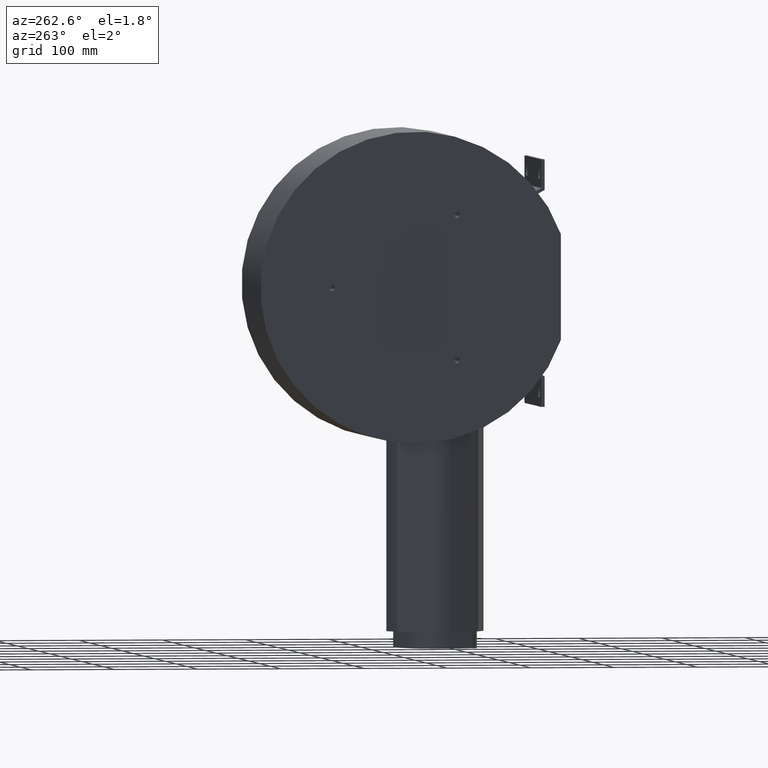
[diagram: clean part render]
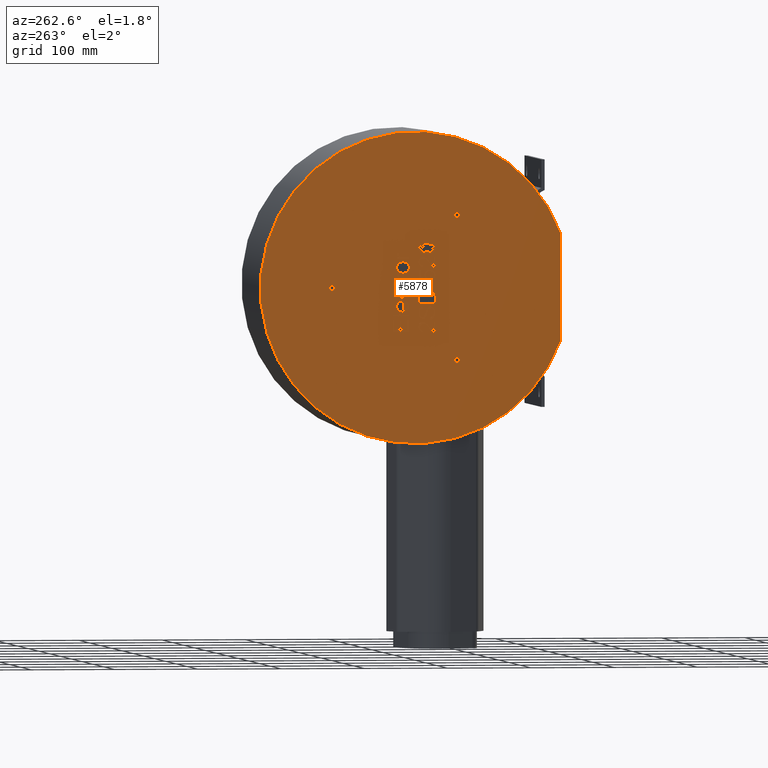
[diagram: same view with one face highlighted and labeled with its STEP entity id]
A machine part, auxiliary view. The second image highlights one B-rep face of the part: STEP entity #5878.
In plain terms, the highlighted planar face has unit normal (-1, 0, 0).
Its self-contained STEP definition (entity closure, byte-faithful):
#1494=CARTESIAN_POINT('',(0.0,-175.0,-63.015871016752627));
#1495=VERTEX_POINT('',#1494);
#1502=CARTESIAN_POINT('',(0.0,-175.0,63.015871016752627));
#1503=VERTEX_POINT('',#1502);
#1504=CARTESIAN_POINT('',(0.0,0.0,0.0));
#1505=DIRECTION('',(1.0,0.0,0.0));
#1506=DIRECTION('',(0.0,1.0,0.0));
#1507=AXIS2_PLACEMENT_3D('',#1504,#1505,#1506);
#1508=CIRCLE('',#1507,186.0);
#1509=EDGE_CURVE('',#1495,#1503,#1508,.T.);
#2282=CARTESIAN_POINT('',(0.0,-175.0,-63.015871016752627));
#2283=DIRECTION('',(0.0,0.0,1.0));
#2284=VECTOR('',#2283,126.03174203350525);
#2285=LINE('',#2282,#2284);
#2286=EDGE_CURVE('',#1495,#1503,#2285,.T.);
#3575=CARTESIAN_POINT('',(0.0,100.0,3.3235));
#3576=VERTEX_POINT('',#3575);
#3577=CARTESIAN_POINT('',(0.0,100.0,0.0));
#3578=DIRECTION('',(1.0,0.0,0.0));
#3579=DIRECTION('',(0.0,0.0,1.0));
#3580=AXIS2_PLACEMENT_3D('',#3577,#3578,#3579);
#3581=CIRCLE('',#3580,3.3235);
#3582=EDGE_CURVE('',#3576,#3576,#3581,.T.);
#3612=CARTESIAN_POINT('',(0.0,-52.878235429477563,84.940790378443893));
#3613=VERTEX_POINT('',#3612);
#3614=CARTESIAN_POINT('',(0.0,-49.999999999999986,86.602540378443891));
#3615=DIRECTION('',(1.0,0.0,0.0));
#3616=DIRECTION('',(0.0,-0.866025403784439,-0.5));
#3617=AXIS2_PLACEMENT_3D('',#3614,#3615,#3616);
#3618=CIRCLE('',#3617,3.3235);
#3619=EDGE_CURVE('',#3613,#3613,#3618,.T.);
#3649=CARTESIAN_POINT('',(0.0,-47.12176457052248,-88.264290378443846));
#3650=VERTEX_POINT('',#3649);
#3651=CARTESIAN_POINT('',(0.0,-50.000000000000057,-86.602540378443848));
#3652=DIRECTION('',(1.0,0.0,0.0));
#3653=DIRECTION('',(0.0,0.866025403784438,-0.5));
#3654=AXIS2_PLACEMENT_3D('',#3651,#3652,#3653);
#3655=CIRCLE('',#3654,3.323500000000001);
#3656=EDGE_CURVE('',#3650,#3650,#3655,.T.);
#4559=CARTESIAN_POINT('',(0.0,93.0,0.0));
#4560=DIRECTION('',(-1.0,0.0,0.0));
#4561=DIRECTION('',(0.0,0.0,1.0));
#4562=AXIS2_PLACEMENT_3D('',#4559,#4560,#4561);
#4563=PLANE('',#4562);
#4564=ORIENTED_EDGE('',*,*,#2286,.T.);
#4565=ORIENTED_EDGE('',*,*,#1509,.F.);
#4566=EDGE_LOOP('',(#4564,#4565));
#4567=FACE_OUTER_BOUND('',#4566,.T.);
#4568=CARTESIAN_POINT('',(0.0,-3.974047899246216,-18.673780487804876));
#4569=VERTEX_POINT('',#4568);
#4570=CARTESIAN_POINT('',(0.0,-3.974047899246216,-11.78353658536585));
#4571=VERTEX_POINT('',#4570);
#4572=CARTESIAN_POINT('',(0.0,-3.974047899246216,-18.673780487804876));
#4573=DIRECTION('',(0.0,0.0,1.0));
#4574=VECTOR('',#4573,6.890243902439027);
#4575=LINE('',#4572,#4574);
#4576=EDGE_CURVE('',#4569,#4571,#4575,.T.);
#4577=ORIENTED_EDGE('',*,*,#4576,.T.);
#4578=CARTESIAN_POINT('',(0.0,-4.263682045587678,-8.216463414634143));
#4579=VERTEX_POINT('',#4578);
#4580=CARTESIAN_POINT('',(0.0,-3.974047899246216,-11.78353658536585));
#4581=CARTESIAN_POINT('',(0.0,-3.974047899246216,-9.45121951219512));
#4582=CARTESIAN_POINT('',(0.0,-4.263682045587678,-8.216463414634143));
#4583=QUASI_UNIFORM_CURVE('',2,(#4580,#4581,#4582),.UNSPECIFIED.,.F.,.U.);
#4584=EDGE_CURVE('',#4571,#4579,#4583,.T.);
#4585=ORIENTED_EDGE('',*,*,#4584,.T.);
#4586=CARTESIAN_POINT('',(0.0,-5.69660887485597,-5.289634146341459));
#4587=VERTEX_POINT('',#4586);
#4588=CARTESIAN_POINT('',(0.0,-4.263682045587678,-8.216463414634143));
#4589=CARTESIAN_POINT('',(0.0,-4.660023509002313,-6.493902439024389));
#4590=CARTESIAN_POINT('',(0.0,-5.69660887485597,-5.289634146341459));
#4591=QUASI_UNIFORM_CURVE('',2,(#4588,#4589,#4590),.UNSPECIFIED.,.F.,.U.);
#4592=EDGE_CURVE('',#4579,#4587,#4591,.T.);
#4593=ORIENTED_EDGE('',*,*,#4592,.T.);
#4594=CARTESIAN_POINT('',(0.0,-13.867340582173044,-2.134146341463412));
#4595=VERTEX_POINT('',#4594);
#4596=CARTESIAN_POINT('',(0.0,-5.69660887485597,-5.289634146341459));
#4597=CARTESIAN_POINT('',(0.0,-7.022828387051094,-3.704268292682924));
#4598=CARTESIAN_POINT('',(0.0,-11.184413752904751,-2.134146341463412));
#4599=CARTESIAN_POINT('',(0.0,-13.867340582173044,-2.134146341463412));
#4600=QUASI_UNIFORM_CURVE('',2,(#4596,#4597,#4598,#4599),.UNSPECIFIED.,.F.,.U.);
#4601=EDGE_CURVE('',#4587,#4595,#4600,.T.);
#4602=ORIENTED_EDGE('',*,*,#4601,.T.);
#4603=CARTESIAN_POINT('',(0.0,-23.974047899246216,-11.448170731707314));
#4604=VERTEX_POINT('',#4603);
#4605=CARTESIAN_POINT('',(0.0,-13.867340582173044,-2.134146341463412));
#4606=CARTESIAN_POINT('',(0.0,-16.138682045587679,-2.134146341463412));
#4607=CARTESIAN_POINT('',(0.0,-19.660023509002315,-3.201219512195119));
#4608=CARTESIAN_POINT('',(0.0,-21.961852777294997,-4.862804878048777));
#4609=CARTESIAN_POINT('',(0.0,-23.28807228949012,-6.844512195121948));
#4610=CARTESIAN_POINT('',(0.0,-23.974047899246216,-9.634146341463412));
#4611=CARTESIAN_POINT('',(0.0,-23.974047899246216,-11.448170731707314));
#4612=QUASI_UNIFORM_CURVE('',2,(#4605,#4606,#4607,#4608,#4609,#4610,#4611),.UNSPECIFIED.,.F.,.U.);
#4613=EDGE_CURVE('',#4595,#4604,#4612,.T.);
#4614=ORIENTED_EDGE('',*,*,#4613,.T.);
#4615=CARTESIAN_POINT('',(0.0,-23.974047899246216,-18.673780487804876));
#4616=VERTEX_POINT('',#4615);
#4617=CARTESIAN_POINT('',(0.0,-23.974047899246216,-11.448170731707314));
#4618=DIRECTION('',(0.0,0.0,-1.0));
#4619=VECTOR('',#4618,7.225609756097562);
#4620=LINE('',#4617,#4619);
#4621=EDGE_CURVE('',#4604,#4616,#4620,.T.);
#4622=ORIENTED_EDGE('',*,*,#4621,.T.);
#4623=CARTESIAN_POINT('',(0.0,-23.974047899246216,-18.673780487804876));
#4624=DIRECTION('',(0.0,1.0,0.0));
#4625=VECTOR('',#4624,20.0);
#4626=LINE('',#4623,#4625);
#4627=EDGE_CURVE('',#4616,#4569,#4626,.T.);
#4628=ORIENTED_EDGE('',*,*,#4627,.T.);
#4629=EDGE_LOOP('',(#4577,#4585,#4593,#4602,#4614,#4622,#4628));
#4630=FACE_BOUND('',#4629,.T.);
#4631=CARTESIAN_POINT('',(0.0,-17.327706435831583,-35.716463414634141));
#4632=VERTEX_POINT('',#4631);
#4633=CARTESIAN_POINT('',(0.0,-21.946608874855972,-29.801829268292678));
#4634=VERTEX_POINT('',#4633);
#4635=CARTESIAN_POINT('',(0.0,-17.327706435831583,-35.716463414634141));
#4636=CARTESIAN_POINT('',(0.0,-18.836852777294997,-35.533536585365852));
#4637=CARTESIAN_POINT('',(0.0,-20.757584484612067,-34.237804878048777));
#4638=CARTESIAN_POINT('',(0.0,-21.946608874855972,-31.50914634146341));
#4639=CARTESIAN_POINT('',(0.0,-21.946608874855972,-29.801829268292678));
#4640=QUASI_UNIFORM_CURVE('',2,(#4635,#4636,#4637,#4638,#4639),.UNSPECIFIED.,.F.,.U.);
#4641=EDGE_CURVE('',#4632,#4634,#4640,.T.);
#4642=ORIENTED_EDGE('',*,*,#4641,.T.);
#4643=CARTESIAN_POINT('',(0.0,-18.547218630953534,-24.832317073170728));
#4644=VERTEX_POINT('',#4643);
#4645=CARTESIAN_POINT('',(0.0,-21.946608874855972,-29.801829268292678));
#4646=CARTESIAN_POINT('',(0.0,-21.946608874855972,-28.292682926829265));
#4647=CARTESIAN_POINT('',(0.0,-21.04721863095353,-25.960365853658534));
#4648=CARTESIAN_POINT('',(0.0,-19.477096679734021,-24.832317073170728));
#4649=CARTESIAN_POINT('',(0.0,-18.547218630953534,-24.832317073170728));
#4650=QUASI_UNIFORM_CURVE('',2,(#4645,#4646,#4647,#4648,#4649),.UNSPECIFIED.,.F.,.U.);
#4651=EDGE_CURVE('',#4634,#4644,#4650,.T.);
#4652=ORIENTED_EDGE('',*,*,#4651,.T.);
#4653=CARTESIAN_POINT('',(0.0,-15.727096679734021,-27.179878048780488));
#4654=VERTEX_POINT('',#4653);
#4655=CARTESIAN_POINT('',(0.0,-18.547218630953534,-24.832317073170728));
#4656=CARTESIAN_POINT('',(0.0,-17.602096679734021,-24.832317073170728));
#4657=CARTESIAN_POINT('',(0.0,-16.199657655343778,-25.914634146341456));
#4658=CARTESIAN_POINT('',(0.0,-15.727096679734021,-27.179878048780488));
#4659=QUASI_UNIFORM_CURVE('',2,(#4655,#4656,#4657,#4658),.UNSPECIFIED.,.F.,.U.);
#4660=EDGE_CURVE('',#4644,#4654,#4659,.T.);
#4661=ORIENTED_EDGE('',*,*,#4660,.T.);
#4662=CARTESIAN_POINT('',(0.0,-13.486243021197435,-34.634146341463413));
#4663=VERTEX_POINT('',#4662);
#4664=CARTESIAN_POINT('',(0.0,-15.727096679734021,-27.179878048780488));
#4665=CARTESIAN_POINT('',(0.0,-15.406974728514509,-27.987804878048777));
#4666=CARTESIAN_POINT('',(0.0,-14.080755216319387,-33.521341463414629));
#4667=CARTESIAN_POINT('',(0.0,-13.486243021197435,-34.634146341463406));
#4668=QUASI_UNIFORM_CURVE('',2,(#4664,#4665,#4666,#4667),.UNSPECIFIED.,.F.,.U.);
#4669=EDGE_CURVE('',#4654,#4663,#4668,.T.);
#4670=ORIENTED_EDGE('',*,*,#4669,.T.);
#4671=CARTESIAN_POINT('',(0.0,-9.141730826075484,-37.469512195121951));
#4672=VERTEX_POINT('',#4671);
#4673=CARTESIAN_POINT('',(0.0,-13.486243021197435,-34.634146341463406));
#4674=CARTESIAN_POINT('',(0.0,-12.739291801685241,-36.067073170731703));
#4675=CARTESIAN_POINT('',(0.0,-10.513682045587679,-37.469512195121951));
#4676=CARTESIAN_POINT('',(0.0,-9.141730826075483,-37.469512195121951));
#4677=QUASI_UNIFORM_CURVE('',2,(#4673,#4674,#4675,#4676),.UNSPECIFIED.,.F.,.U.);
#4678=EDGE_CURVE('',#4663,#4672,#4677,.T.);
#4679=ORIENTED_EDGE('',*,*,#4678,.T.);
#4680=CARTESIAN_POINT('',(0.0,-3.623438143148654,-30.411585365853657));
#4681=VERTEX_POINT('',#4680);
#4682=CARTESIAN_POINT('',(0.0,-9.141730826075483,-37.469512195121951));
#4683=CARTESIAN_POINT('',(0.0,-7.617340582173044,-37.469512195121951));
#4684=CARTESIAN_POINT('',(0.0,-4.995389362660849,-35.746951219512191));
#4685=CARTESIAN_POINT('',(0.0,-3.623438143148654,-32.439024390243901));
#4686=CARTESIAN_POINT('',(0.0,-3.623438143148654,-30.411585365853657));
#4687=QUASI_UNIFORM_CURVE('',2,(#4682,#4683,#4684,#4685,#4686),.UNSPECIFIED.,.F.,.U.);
#4688=EDGE_CURVE('',#4672,#4681,#4687,.T.);
#4689=ORIENTED_EDGE('',*,*,#4688,.T.);
#4690=CARTESIAN_POINT('',(0.0,-9.599047899246216,-22.881097560975604));
#4691=VERTEX_POINT('',#4690);
#4692=CARTESIAN_POINT('',(0.0,-3.623438143148654,-30.411585365853657));
#4693=CARTESIAN_POINT('',(0.0,-3.623438143148654,-28.185975609756095));
#4694=CARTESIAN_POINT('',(0.0,-5.056364972416947,-24.786585365853657));
#4695=CARTESIAN_POINT('',(0.0,-7.845999118758411,-22.942073170731703));
#4696=CARTESIAN_POINT('',(0.0,-9.599047899246216,-22.881097560975604));
#4697=QUASI_UNIFORM_CURVE('',2,(#4692,#4693,#4694,#4695,#4696),.UNSPECIFIED.,.F.,.U.);
#4698=EDGE_CURVE('',#4681,#4691,#4697,.T.);
#4699=ORIENTED_EDGE('',*,*,#4698,.T.);
#4700=CARTESIAN_POINT('',(0.0,-9.797218630953532,-25.411585365853657));
#4701=VERTEX_POINT('',#4700);
#4702=CARTESIAN_POINT('',(0.0,-9.599047899246221,-22.881097560975604));
#4703=DIRECTION('',(0.0,-0.078074205759966,-0.996947550473419));
#4704=VECTOR('',#4703,2.538235641058958);
#4705=LINE('',#4702,#4704);
#4706=EDGE_CURVE('',#4691,#4701,#4705,.T.);
#4707=ORIENTED_EDGE('',*,*,#4706,.T.);
#4708=CARTESIAN_POINT('',(0.0,-5.955755216319385,-30.304878048780488));
#4709=VERTEX_POINT('',#4708);
#4710=CARTESIAN_POINT('',(0.0,-9.797218630953532,-25.411585365853657));
#4711=CARTESIAN_POINT('',(0.0,-7.891730826075483,-25.609756097560972));
#4712=CARTESIAN_POINT('',(0.0,-5.955755216319385,-27.987804878048777));
#4713=CARTESIAN_POINT('',(0.0,-5.955755216319385,-30.304878048780488));
#4714=QUASI_UNIFORM_CURVE('',2,(#4710,#4711,#4712,#4713),.UNSPECIFIED.,.F.,.U.);
#4715=EDGE_CURVE('',#4701,#4709,#4714,.T.);
#4716=ORIENTED_EDGE('',*,*,#4715,.T.);
#4717=CARTESIAN_POINT('',(0.0,-8.958803996807191,-34.923780487804876));
#4718=VERTEX_POINT('',#4717);
#4719=CARTESIAN_POINT('',(0.0,-5.955755216319385,-30.304878048780488));
#4720=CARTESIAN_POINT('',(0.0,-5.955755216319385,-32.713414634146339));
#4721=CARTESIAN_POINT('',(0.0,-7.724047899246216,-34.923780487804876));
#4722=CARTESIAN_POINT('',(0.0,-8.958803996807191,-34.923780487804876));
#4723=QUASI_UNIFORM_CURVE('',2,(#4719,#4720,#4721,#4722),.UNSPECIFIED.,.F.,.U.);
#4724=EDGE_CURVE('',#4709,#4718,#4723,.T.);
#4725=ORIENTED_EDGE('',*,*,#4724,.T.);
#4726=CARTESIAN_POINT('',(0.0,-10.742340582173044,-34.146341463414629));
#4727=VERTEX_POINT('',#4726);
#4728=CARTESIAN_POINT('',(0.0,-8.958803996807191,-34.923780487804876));
#4729=CARTESIAN_POINT('',(0.0,-10.041121069977923,-34.923780487804876));
#4730=CARTESIAN_POINT('',(0.0,-10.742340582173044,-34.146341463414629));
#4731=QUASI_UNIFORM_CURVE('',2,(#4728,#4729,#4730),.UNSPECIFIED.,.F.,.U.);
#4732=EDGE_CURVE('',#4718,#4727,#4731,.T.);
#4733=ORIENTED_EDGE('',*,*,#4732,.T.);
#4734=CARTESIAN_POINT('',(0.0,-13.440511313880361,-25.685975609756095));
#4735=VERTEX_POINT('',#4734);
#4736=CARTESIAN_POINT('',(0.0,-10.742340582173044,-34.146341463414629));
#4737=CARTESIAN_POINT('',(0.0,-11.428316191929142,-33.368902439024389));
#4738=CARTESIAN_POINT('',(0.0,-12.891730826075484,-26.890243902439018));
#4739=CARTESIAN_POINT('',(0.0,-13.440511313880361,-25.685975609756095));
#4740=QUASI_UNIFORM_CURVE('',2,(#4736,#4737,#4738,#4739),.UNSPECIFIED.,.F.,.U.);
#4741=EDGE_CURVE('',#4727,#4735,#4740,.T.);
#4742=ORIENTED_EDGE('',*,*,#4741,.T.);
#4743=CARTESIAN_POINT('',(0.0,-18.318560094368166,-22.286585365853657));
#4744=VERTEX_POINT('',#4743);
#4745=CARTESIAN_POINT('',(0.0,-13.440511313880361,-25.685975609756095));
#4746=CARTESIAN_POINT('',(0.0,-14.248438143148654,-23.948170731707314));
#4747=CARTESIAN_POINT('',(0.0,-16.717950338270605,-22.286585365853657));
#4748=CARTESIAN_POINT('',(0.0,-18.318560094368166,-22.286585365853657));
#4749=QUASI_UNIFORM_CURVE('',2,(#4745,#4746,#4747,#4748),.UNSPECIFIED.,.F.,.U.);
#4750=EDGE_CURVE('',#4735,#4744,#4749,.T.);
#4751=ORIENTED_EDGE('',*,*,#4750,.T.);
#4752=CARTESIAN_POINT('',(0.0,-24.309413752904753,-29.679878048780491));
#4753=VERTEX_POINT('',#4752);
#4754=CARTESIAN_POINT('',(0.0,-18.318560094368166,-22.286585365853657));
#4755=CARTESIAN_POINT('',(0.0,-19.919169850465728,-22.286585365853657));
#4756=CARTESIAN_POINT('',(0.0,-22.739291801685241,-24.115853658536579));
#4757=CARTESIAN_POINT('',(0.0,-24.309413752904753,-27.545731707317067));
#4758=CARTESIAN_POINT('',(0.0,-24.309413752904753,-29.679878048780488));
#4759=QUASI_UNIFORM_CURVE('',2,(#4754,#4755,#4756,#4757,#4758),.UNSPECIFIED.,.F.,.U.);
#4760=EDGE_CURVE('',#4744,#4753,#4759,.T.);
#4761=ORIENTED_EDGE('',*,*,#4760,.T.);
#4762=CARTESIAN_POINT('',(0.0,-17.541121069977923,-38.216463414634141));
#4763=VERTEX_POINT('',#4762);
#4764=CARTESIAN_POINT('',(0.0,-24.309413752904753,-29.679878048780488));
#4765=CARTESIAN_POINT('',(0.0,-24.309413752904753,-32.408536585365852));
#4766=CARTESIAN_POINT('',(0.0,-22.724047899246216,-36.067073170731703));
#4767=CARTESIAN_POINT('',(0.0,-19.553316191929142,-38.155487804878049));
#4768=CARTESIAN_POINT('',(0.0,-17.541121069977923,-38.216463414634141));
#4769=QUASI_UNIFORM_CURVE('',2,(#4764,#4765,#4766,#4767,#4768),.UNSPECIFIED.,.F.,.U.);
#4770=EDGE_CURVE('',#4753,#4763,#4769,.T.);
#4771=ORIENTED_EDGE('',*,*,#4770,.T.);
#4772=CARTESIAN_POINT('',(0.0,-17.541121069977923,-38.216463414634148));
#4773=DIRECTION('',(0.0,0.085056498883755,0.996376129781137));
#4774=VECTOR('',#4773,2.509092626043888);
#4775=LINE('',#4772,#4774);
#4776=EDGE_CURVE('',#4763,#4632,#4775,.T.);
#4777=ORIENTED_EDGE('',*,*,#4776,.T.);
#4778=EDGE_LOOP('',(#4642,#4652,#4661,#4670,#4679,#4689,#4699,#4707,#4716,#4725,#4733,#4742,#4751,#4761,#4771,#4777));
#4779=FACE_BOUND('',#4778,.T.);
#4780=CARTESIAN_POINT('',(0.0,-23.974047899246216,-40.945121951219512));
#4781=VERTEX_POINT('',#4780);
#4782=CARTESIAN_POINT('',(0.0,-23.974047899246216,-54.161585365853654));
#4783=VERTEX_POINT('',#4782);
#4784=CARTESIAN_POINT('',(0.0,-23.974047899246216,-40.945121951219512));
#4785=DIRECTION('',(0.0,0.0,-1.0));
#4786=VECTOR('',#4785,13.216463414634141);
#4787=LINE('',#4784,#4786);
#4788=EDGE_CURVE('',#4781,#4783,#4787,.T.);
#4789=ORIENTED_EDGE('',*,*,#4788,.T.);
#4790=CARTESIAN_POINT('',(0.0,-22.266730826075488,-53.871951219512191));
#4791=VERTEX_POINT('',#4790);
#4792=CARTESIAN_POINT('',(0.0,-23.974047899246216,-54.161585365853654));
#4793=CARTESIAN_POINT('',(0.0,-23.089901557782802,-54.192073170731703));
#4794=CARTESIAN_POINT('',(0.0,-22.266730826075481,-53.871951219512191));
#4795=QUASI_UNIFORM_CURVE('',2,(#4792,#4793,#4794),.UNSPECIFIED.,.F.,.U.);
#4796=EDGE_CURVE('',#4783,#4791,#4795,.T.);
#4797=ORIENTED_EDGE('',*,*,#4796,.T.);
#4798=CARTESIAN_POINT('',(0.0,-16.580755216319389,-49.03963414634147));
#4799=VERTEX_POINT('',#4798);
#4800=CARTESIAN_POINT('',(0.0,-22.266730826075481,-53.871951219512191));
#4801=CARTESIAN_POINT('',(0.0,-20.910023509002311,-53.368902439024389));
#4802=CARTESIAN_POINT('',(0.0,-18.303316191929142,-51.143292682926827));
#4803=CARTESIAN_POINT('',(0.0,-16.580755216319389,-49.03963414634147));
#4804=QUASI_UNIFORM_CURVE('',2,(#4800,#4801,#4802,#4803),.UNSPECIFIED.,.F.,.U.);
#4805=EDGE_CURVE('',#4791,#4799,#4804,.T.);
#4806=ORIENTED_EDGE('',*,*,#4805,.T.);
#4807=CARTESIAN_POINT('',(0.0,-9.385633265099873,-43.506097560975611));
#4808=VERTEX_POINT('',#4807);
#4809=CARTESIAN_POINT('',(0.0,-16.580755216319389,-49.03963414634147));
#4810=CARTESIAN_POINT('',(0.0,-13.897828387051094,-45.792682926829265));
#4811=CARTESIAN_POINT('',(0.0,-10.788072289490119,-43.506097560975611));
#4812=CARTESIAN_POINT('',(0.0,-9.385633265099873,-43.506097560975611));
#4813=QUASI_UNIFORM_CURVE('',2,(#4809,#4810,#4811,#4812),.UNSPECIFIED.,.F.,.U.);
#4814=EDGE_CURVE('',#4799,#4808,#4813,.T.);
#4815=ORIENTED_EDGE('',*,*,#4814,.T.);
#4816=CARTESIAN_POINT('',(0.0,-5.925267411441338,-47.271341463414629));
#4817=VERTEX_POINT('',#4816);
#4818=CARTESIAN_POINT('',(0.0,-9.385633265099873,-43.506097560975611));
#4819=CARTESIAN_POINT('',(0.0,-7.922218630953532,-43.506097560975611));
#4820=CARTESIAN_POINT('',(0.0,-5.925267411441338,-45.594512195121951));
#4821=CARTESIAN_POINT('',(0.0,-5.925267411441338,-47.271341463414629));
#4822=QUASI_UNIFORM_CURVE('',2,(#4818,#4819,#4820,#4821),.UNSPECIFIED.,.F.,.U.);
#4823=EDGE_CURVE('',#4808,#4817,#4822,.T.);
#4824=ORIENTED_EDGE('',*,*,#4823,.T.);
#4825=CARTESIAN_POINT('',(0.0,-9.934413752904753,-51.173780487804876));
#4826=VERTEX_POINT('',#4825);
#4827=CARTESIAN_POINT('',(0.0,-5.925267411441338,-47.271341463414629));
#4828=CARTESIAN_POINT('',(0.0,-5.925267411441338,-49.03963414634147));
#4829=CARTESIAN_POINT('',(0.0,-8.059413752904751,-51.158536585365859));
#4830=CARTESIAN_POINT('',(0.0,-9.934413752904751,-51.173780487804876));
#4831=QUASI_UNIFORM_CURVE('',2,(#4827,#4828,#4829,#4830),.UNSPECIFIED.,.F.,.U.);
#4832=EDGE_CURVE('',#4817,#4826,#4831,.T.);
#4833=ORIENTED_EDGE('',*,*,#4832,.T.);
#4834=CARTESIAN_POINT('',(0.0,-9.675267411441338,-53.704268292682926));
#4835=VERTEX_POINT('',#4834);
#4836=CARTESIAN_POINT('',(0.0,-9.934413752904757,-51.173780487804883));
#4837=DIRECTION('',(0.0,0.101876803556507,-0.994797022963533));
#4838=VECTOR('',#4837,2.543722735859859);
#4839=LINE('',#4836,#4838);
#4840=EDGE_CURVE('',#4826,#4835,#4839,.T.);
#4841=ORIENTED_EDGE('',*,*,#4840,.T.);
#4842=CARTESIAN_POINT('',(0.0,-3.897828387051092,-47.21036585365853));
#4843=VERTEX_POINT('',#4842);
#4844=CARTESIAN_POINT('',(0.0,-9.675267411441338,-53.704268292682926));
#4845=CARTESIAN_POINT('',(0.0,-6.855145460221825,-53.445121951219512));
#4846=CARTESIAN_POINT('',(0.0,-3.897828387051092,-50.060975609756099));
#4847=CARTESIAN_POINT('',(0.0,-3.897828387051092,-47.21036585365853));
#4848=QUASI_UNIFORM_CURVE('',2,(#4844,#4845,#4846,#4847),.UNSPECIFIED.,.F.,.U.);
#4849=EDGE_CURVE('',#4835,#4843,#4848,.T.);
#4850=ORIENTED_EDGE('',*,*,#4849,.T.);
#4851=CARTESIAN_POINT('',(0.0,-9.44660887485597,-40.975609756097562));
#4852=VERTEX_POINT('',#4851);
#4853=CARTESIAN_POINT('',(0.0,-3.897828387051092,-47.21036585365853));
#4854=CARTESIAN_POINT('',(0.0,-3.897828387051092,-44.329268292682926));
#4855=CARTESIAN_POINT('',(0.0,-7.083803996807189,-40.975609756097562));
#4856=CARTESIAN_POINT('',(0.0,-9.44660887485597,-40.975609756097562));
#4857=QUASI_UNIFORM_CURVE('',2,(#4853,#4854,#4855,#4856),.UNSPECIFIED.,.F.,.U.);
#4858=EDGE_CURVE('',#4843,#4852,#4857,.T.);
#4859=ORIENTED_EDGE('',*,*,#4858,.T.);
#4860=CARTESIAN_POINT('',(0.0,-17.769779606563286,-46.875));
#4861=VERTEX_POINT('',#4860);
#4862=CARTESIAN_POINT('',(0.0,-9.44660887485597,-40.975609756097562));
#4863=CARTESIAN_POINT('',(0.0,-10.6508771675389,-40.975609756097562));
#4864=CARTESIAN_POINT('',(0.0,-12.967950338270606,-41.951219512195124));
#4865=CARTESIAN_POINT('',(0.0,-15.528925948026702,-44.237804878048777));
#4866=CARTESIAN_POINT('',(0.0,-17.769779606563286,-46.875));
#4867=QUASI_UNIFORM_CURVE('',2,(#4862,#4863,#4864,#4865,#4866),.UNSPECIFIED.,.F.,.U.);
#4868=EDGE_CURVE('',#4852,#4861,#4867,.T.);
#4869=ORIENTED_EDGE('',*,*,#4868,.T.);
#4870=CARTESIAN_POINT('',(0.0,-21.611243021197435,-50.746951219512198));
#4871=VERTEX_POINT('',#4870);
#4872=CARTESIAN_POINT('',(0.0,-17.769779606563286,-46.875));
#4873=CARTESIAN_POINT('',(0.0,-19.614291801685241,-49.08536585365853));
#4874=CARTESIAN_POINT('',(0.0,-20.940511313880364,-50.33536585365853));
#4875=CARTESIAN_POINT('',(0.0,-21.611243021197435,-50.746951219512191));
#4876=QUASI_UNIFORM_CURVE('',2,(#4872,#4873,#4874,#4875),.UNSPECIFIED.,.F.,.U.);
#4877=EDGE_CURVE('',#4861,#4871,#4876,.T.);
#4878=ORIENTED_EDGE('',*,*,#4877,.T.);
#4879=CARTESIAN_POINT('',(0.0,-21.611243021197435,-40.945121951219512));
#4880=VERTEX_POINT('',#4879);
#4881=CARTESIAN_POINT('',(0.0,-21.611243021197435,-50.746951219512198));
#4882=DIRECTION('',(0.0,0.0,1.0));
#4883=VECTOR('',#4882,9.801829268292686);
#4884=LINE('',#4881,#4883);
#4885=EDGE_CURVE('',#4871,#4880,#4884,.T.);
#4886=ORIENTED_EDGE('',*,*,#4885,.T.);
#4887=CARTESIAN_POINT('',(0.0,-21.611243021197431,-40.945121951219512));
#4888=DIRECTION('',(0.0,-1.0,0.0));
#4889=VECTOR('',#4888,2.362804878048785);
#4890=LINE('',#4887,#4889);
#4891=EDGE_CURVE('',#4880,#4781,#4890,.T.);
#4892=ORIENTED_EDGE('',*,*,#4891,.T.);
#4893=EDGE_LOOP('',(#4789,#4797,#4806,#4815,#4824,#4833,#4841,#4850,#4859,#4869,#4878,#4886,#4892));
#4894=FACE_BOUND('',#4893,.T.);
#4895=CARTESIAN_POINT('',(0.0,21.99695241160509,33.765243902439025));
#4896=VERTEX_POINT('',#4895);
#4897=CARTESIAN_POINT('',(0.0,21.99695241160509,35.975609756097562));
#4898=VERTEX_POINT('',#4897);
#4899=CARTESIAN_POINT('',(0.0,21.996952411605086,33.765243902439025));
#4900=DIRECTION('',(0.0,0.0,1.0));
#4901=VECTOR('',#4900,2.210365853658537);
#4902=LINE('',#4899,#4901);
#4903=EDGE_CURVE('',#4896,#4898,#4902,.T.);
#4904=ORIENTED_EDGE('',*,*,#4903,.T.);
#4905=CARTESIAN_POINT('',(0.0,19.801830460385577,35.975609756097562));
#4906=VERTEX_POINT('',#4905);
#4907=CARTESIAN_POINT('',(0.0,21.996952411605093,35.975609756097562));
#4908=DIRECTION('',(0.0,-1.0,0.0));
#4909=VECTOR('',#4908,2.195121951219512);
#4910=LINE('',#4907,#4909);
#4911=EDGE_CURVE('',#4898,#4906,#4910,.T.);
#4912=ORIENTED_EDGE('',*,*,#4911,.T.);
#4913=CARTESIAN_POINT('',(0.0,22.317074362824599,39.115853658536587));
#4914=VERTEX_POINT('',#4913);
#4915=CARTESIAN_POINT('',(0.0,19.801830460385577,35.975609756097562));
#4916=CARTESIAN_POINT('',(0.0,21.341464606727044,36.814024390243901));
#4917=CARTESIAN_POINT('',(0.0,22.317074362824599,38.246951219512198));
#4918=CARTESIAN_POINT('',(0.0,22.317074362824599,39.115853658536587));
#4919=QUASI_UNIFORM_CURVE('',2,(#4915,#4916,#4917,#4918),.UNSPECIFIED.,.F.,.U.);
#4920=EDGE_CURVE('',#4906,#4914,#4919,.T.);
#4921=ORIENTED_EDGE('',*,*,#4920,.T.);
#4922=CARTESIAN_POINT('',(0.0,21.539635338434362,41.631097560975611));
#4923=VERTEX_POINT('',#4922);
#4924=CARTESIAN_POINT('',(0.0,22.317074362824599,39.115853658536587));
#4925=CARTESIAN_POINT('',(0.0,22.317074362824599,40.350609756097562));
#4926=CARTESIAN_POINT('',(0.0,21.539635338434362,41.631097560975611));
#4927=QUASI_UNIFORM_CURVE('',2,(#4924,#4925,#4926),.UNSPECIFIED.,.F.,.U.);
#4928=EDGE_CURVE('',#4914,#4923,#4927,.T.);
#4929=ORIENTED_EDGE('',*,*,#4928,.T.);
#4930=CARTESIAN_POINT('',(0.0,19.253049972580701,40.777439024390247));
#4931=VERTEX_POINT('',#4930);
#4932=CARTESIAN_POINT('',(0.0,21.539635338434362,41.631097560975604));
#4933=DIRECTION('',(0.0,-0.936841514727358,-0.34975416549821));
#4934=VECTOR('',#4933,2.440738726783589);
#4935=LINE('',#4932,#4934);
#4936=EDGE_CURVE('',#4923,#4931,#4935,.T.);
#4937=ORIENTED_EDGE('',*,*,#4936,.T.);
#4938=CARTESIAN_POINT('',(0.0,19.786586557946556,38.978658536585364));
#4939=VERTEX_POINT('',#4938);
#4940=CARTESIAN_POINT('',(0.0,19.253049972580701,40.777439024390247));
#4941=CARTESIAN_POINT('',(0.0,19.786586557946556,39.878048780487809));
#4942=CARTESIAN_POINT('',(0.0,19.786586557946556,38.978658536585364));
#4943=QUASI_UNIFORM_CURVE('',2,(#4940,#4941,#4942),.UNSPECIFIED.,.F.,.U.);
#4944=EDGE_CURVE('',#4931,#4939,#4943,.T.);
#4945=ORIENTED_EDGE('',*,*,#4944,.T.);
#4946=CARTESIAN_POINT('',(0.0,17.957318265263631,36.631097560975611));
#4947=VERTEX_POINT('',#4946);
#4948=CARTESIAN_POINT('',(0.0,19.786586557946556,38.978658536585364));
#4949=CARTESIAN_POINT('',(0.0,19.786586557946556,38.170731707317074));
#4950=CARTESIAN_POINT('',(0.0,18.810976801848994,36.905487804878049));
#4951=CARTESIAN_POINT('',(0.0,17.957318265263627,36.631097560975611));
#4952=QUASI_UNIFORM_CURVE('',2,(#4948,#4949,#4950,#4951),.UNSPECIFIED.,.F.,.U.);
#4953=EDGE_CURVE('',#4939,#4947,#4952,.T.);
#4954=ORIENTED_EDGE('',*,*,#4953,.T.);
#4955=CARTESIAN_POINT('',(0.0,15.091464606727044,36.219512195121951));
#4956=VERTEX_POINT('',#4955);
#4957=CARTESIAN_POINT('',(0.0,17.957318265263627,36.631097560975611));
#4958=CARTESIAN_POINT('',(0.0,16.646342655507528,36.219512195121951));
#4959=CARTESIAN_POINT('',(0.0,15.091464606727044,36.219512195121951));
#4960=QUASI_UNIFORM_CURVE('',2,(#4957,#4958,#4959),.UNSPECIFIED.,.F.,.U.);
#4961=EDGE_CURVE('',#4947,#4956,#4960,.T.);
#4962=ORIENTED_EDGE('',*,*,#4961,.T.);
#4963=CARTESIAN_POINT('',(0.0,7.500001192092896,36.219512195121951));
#4964=VERTEX_POINT('',#4963);
#4965=CARTESIAN_POINT('',(0.0,15.091464606727044,36.219512195121951));
#4966=DIRECTION('',(0.0,-1.0,0.0));
#4967=VECTOR('',#4966,7.591463414634148);
#4968=LINE('',#4965,#4967);
#4969=EDGE_CURVE('',#4956,#4964,#4968,.T.);
#4970=ORIENTED_EDGE('',*,*,#4969,.T.);
#4971=CARTESIAN_POINT('',(0.0,7.500001192092896,33.765243902439025));
#4972=VERTEX_POINT('',#4971);
#4973=CARTESIAN_POINT('',(0.0,7.500001192092896,36.219512195121951));
#4974=DIRECTION('',(0.0,0.0,-1.0));
#4975=VECTOR('',#4974,2.454268292682926);
#4976=LINE('',#4973,#4975);
#4977=EDGE_CURVE('',#4964,#4972,#4976,.T.);
#4978=ORIENTED_EDGE('',*,*,#4977,.T.);
#4979=CARTESIAN_POINT('',(0.0,7.500001192092896,33.765243902439025));
#4980=DIRECTION('',(0.0,1.0,0.0));
#4981=VECTOR('',#4980,14.496951219512191);
#4982=LINE('',#4979,#4981);
#4983=EDGE_CURVE('',#4972,#4896,#4982,.T.);
#4984=ORIENTED_EDGE('',*,*,#4983,.T.);
#4985=EDGE_LOOP('',(#4904,#4912,#4921,#4929,#4937,#4945,#4954,#4962,#4970,#4978,#4984));
#4986=FACE_BOUND('',#4985,.T.);
#4987=CARTESIAN_POINT('',(0.0,11.859757289653871,-15.853658536585364));
#4988=VERTEX_POINT('',#4987);
#4989=CARTESIAN_POINT('',(0.0,7.179879240873383,-22.225609756097562));
#4990=VERTEX_POINT('',#4989);
#4991=CARTESIAN_POINT('',(0.0,11.859757289653871,-15.853658536585364));
#4992=CARTESIAN_POINT('',(0.0,9.634147533556309,-16.463414634146339));
#4993=CARTESIAN_POINT('',(0.0,7.179879240873383,-19.710365853658537));
#4994=CARTESIAN_POINT('',(0.0,7.179879240873383,-22.225609756097562));
#4995=QUASI_UNIFORM_CURVE('',2,(#4991,#4992,#4993,#4994),.UNSPECIFIED.,.F.,.U.);
#4996=EDGE_CURVE('',#4988,#4990,#4995,.T.);
#4997=ORIENTED_EDGE('',*,*,#4996,.T.);
#4998=CARTESIAN_POINT('',(0.0,14.618903631117286,-29.131097560975611));
#4999=VERTEX_POINT('',#4998);
#5000=CARTESIAN_POINT('',(0.0,7.179879240873383,-22.225609756097562));
#5001=CARTESIAN_POINT('',(0.0,7.179879240873383,-25.411585365853657));
#5002=CARTESIAN_POINT('',(0.0,11.097562167702652,-29.131097560975611));
#5003=CARTESIAN_POINT('',(0.0,14.618903631117286,-29.131097560975611));
#5004=QUASI_UNIFORM_CURVE('',2,(#5000,#5001,#5002,#5003),.UNSPECIFIED.,.F.,.U.);
#5005=EDGE_CURVE('',#4990,#4999,#5004,.T.);
#5006=ORIENTED_EDGE('',*,*,#5005,.T.);
#5007=CARTESIAN_POINT('',(0.0,22.317074362824599,-22.362804878048784));
#5008=VERTEX_POINT('',#5007);
#5009=CARTESIAN_POINT('',(0.0,14.618903631117286,-29.131097560975611));
#5010=CARTESIAN_POINT('',(0.0,18.277440216483139,-29.131097560975611));
#5011=CARTESIAN_POINT('',(0.0,22.317074362824599,-25.365853658536587));
#5012=CARTESIAN_POINT('',(0.0,22.317074362824599,-22.362804878048781));
#5013=QUASI_UNIFORM_CURVE('',2,(#5009,#5010,#5011,#5012),.UNSPECIFIED.,.F.,.U.);
#5014=EDGE_CURVE('',#4999,#5008,#5013,.T.);
#5015=ORIENTED_EDGE('',*,*,#5014,.T.);
#5016=CARTESIAN_POINT('',(0.0,14.771342655507528,-15.777439024390244));
#5017=VERTEX_POINT('',#5016);
#5018=CARTESIAN_POINT('',(0.0,22.317074362824599,-22.362804878048781));
#5019=CARTESIAN_POINT('',(0.0,22.317074362824599,-19.466463414634145));
#5020=CARTESIAN_POINT('',(0.0,18.353659728678263,-15.777439024390244));
#5021=CARTESIAN_POINT('',(0.0,14.771342655507528,-15.777439024390244));
#5022=QUASI_UNIFORM_CURVE('',2,(#5018,#5019,#5020,#5021),.UNSPECIFIED.,.F.,.U.);
#5023=EDGE_CURVE('',#5008,#5017,#5022,.T.);
#5024=ORIENTED_EDGE('',*,*,#5023,.T.);
#5025=CARTESIAN_POINT('',(0.0,14.115854850629482,-15.792682926829267));
#5026=VERTEX_POINT('',#5025);
#5027=CARTESIAN_POINT('',(0.0,14.771342655507528,-15.777439024390244));
#5028=CARTESIAN_POINT('',(0.0,14.557928021361189,-15.777439024390244));
#5029=CARTESIAN_POINT('',(0.0,14.115854850629482,-15.792682926829267));
#5030=QUASI_UNIFORM_CURVE('',2,(#5027,#5028,#5029),.UNSPECIFIED.,.F.,.U.);
#5031=EDGE_CURVE('',#5017,#5026,#5030,.T.);
#5032=ORIENTED_EDGE('',*,*,#5031,.T.);
#5033=CARTESIAN_POINT('',(0.0,14.115854850629482,-26.600609756097562));
#5034=VERTEX_POINT('',#5033);
#5035=CARTESIAN_POINT('',(0.0,14.115854850629486,-15.792682926829267));
#5036=DIRECTION('',(0.0,0.0,-1.0));
#5037=VECTOR('',#5036,10.807926829268295);
#5038=LINE('',#5035,#5037);
#5039=EDGE_CURVE('',#5026,#5034,#5038,.T.);
#5040=ORIENTED_EDGE('',*,*,#5039,.T.);
#5041=CARTESIAN_POINT('',(0.0,9.192074362824602,-22.225609756097558));
#5042=VERTEX_POINT('',#5041);
#5043=CARTESIAN_POINT('',(0.0,14.115854850629482,-26.600609756097562));
#5044=CARTESIAN_POINT('',(0.0,11.722562167702652,-26.463414634146343));
#5045=CARTESIAN_POINT('',(0.0,9.192074362824602,-24.039634146341463));
#5046=CARTESIAN_POINT('',(0.0,9.192074362824602,-22.225609756097562));
#5047=QUASI_UNIFORM_CURVE('',2,(#5043,#5044,#5045,#5046),.UNSPECIFIED.,.F.,.U.);
#5048=EDGE_CURVE('',#5034,#5042,#5047,.T.);
#5049=ORIENTED_EDGE('',*,*,#5048,.T.);
#5050=CARTESIAN_POINT('',(0.0,12.179879240873383,-18.399390243902438));
#5051=VERTEX_POINT('',#5050);
#5052=CARTESIAN_POINT('',(0.0,9.192074362824602,-22.225609756097562));
#5053=CARTESIAN_POINT('',(0.0,9.192074362824602,-20.868902439024389));
#5054=CARTESIAN_POINT('',(0.0,10.625001192092896,-18.963414634146339));
#5055=CARTESIAN_POINT('',(0.0,12.179879240873383,-18.399390243902438));
#5056=QUASI_UNIFORM_CURVE('',2,(#5052,#5053,#5054,#5055),.UNSPECIFIED.,.F.,.U.);
#5057=EDGE_CURVE('',#5042,#5051,#5056,.T.);
#5058=ORIENTED_EDGE('',*,*,#5057,.T.);
#5059=CARTESIAN_POINT('',(0.0,12.179879240873381,-18.399390243902438));
#5060=DIRECTION('',(0.0,-0.124765929803273,0.992186203673648));
#5061=VECTOR('',#5060,2.565780191148901);
#5062=LINE('',#5059,#5061);
#5063=EDGE_CURVE('',#5051,#4988,#5062,.T.);
#5064=ORIENTED_EDGE('',*,*,#5063,.T.);
#5065=EDGE_LOOP('',(#4997,#5006,#5015,#5024,#5032,#5040,#5049,#5058,#5064));
#5066=FACE_BOUND('',#5065,.T.);
#5067=CARTESIAN_POINT('',(0.0,27.500001192092896,-34.573170731707322));
#5068=VERTEX_POINT('',#5067);
#5069=CARTESIAN_POINT('',(0.0,27.500001192092896,-32.118902439024389));
#5070=VERTEX_POINT('',#5069);
#5071=CARTESIAN_POINT('',(0.0,27.500001192092896,-34.573170731707322));
#5072=DIRECTION('',(0.0,0.0,1.0));
#5073=VECTOR('',#5072,2.454268292682926);
#5074=LINE('',#5071,#5073);
#5075=EDGE_CURVE('',#5068,#5070,#5074,.T.);
#5076=ORIENTED_EDGE('',*,*,#5075,.T.);
#5077=CARTESIAN_POINT('',(0.0,7.500001192092896,-32.118902439024389));
#5078=VERTEX_POINT('',#5077);
#5079=CARTESIAN_POINT('',(0.0,27.500001192092896,-32.118902439024389));
#5080=DIRECTION('',(0.0,-1.0,0.0));
#5081=VECTOR('',#5080,20.0);
#5082=LINE('',#5079,#5081);
#5083=EDGE_CURVE('',#5070,#5078,#5082,.T.);
#5084=ORIENTED_EDGE('',*,*,#5083,.T.);
#5085=CARTESIAN_POINT('',(0.0,7.500001192092896,-34.573170731707322));
#5086=VERTEX_POINT('',#5085);
#5087=CARTESIAN_POINT('',(0.0,7.500001192092896,-32.118902439024389));
#5088=DIRECTION('',(0.0,0.0,-1.0));
#5089=VECTOR('',#5088,2.454268292682933);
#5090=LINE('',#5087,#5089);
#5091=EDGE_CURVE('',#5078,#5086,#5090,.T.);
#5092=ORIENTED_EDGE('',*,*,#5091,.T.);
#5093=CARTESIAN_POINT('',(0.0,7.500001192092896,-34.573170731707322));
#5094=DIRECTION('',(0.0,1.0,0.0));
#5095=VECTOR('',#5094,19.999999999999996);
#5096=LINE('',#5093,#5095);
#5097=EDGE_CURVE('',#5086,#5068,#5096,.T.);
#5098=ORIENTED_EDGE('',*,*,#5097,.T.);
#5099=EDGE_LOOP('',(#5076,#5084,#5092,#5098));
#5100=FACE_BOUND('',#5099,.T.);
#5101=CARTESIAN_POINT('',(0.0,27.500001192092896,-52.78963414634147));
#5102=VERTEX_POINT('',#5101);
#5103=CARTESIAN_POINT('',(0.0,27.500001192092896,-38.307926829268297));
#5104=VERTEX_POINT('',#5103);
#5105=CARTESIAN_POINT('',(0.0,27.500001192092896,-52.78963414634147));
#5106=DIRECTION('',(0.0,0.0,1.0));
#5107=VECTOR('',#5106,14.481707317073173);
#5108=LINE('',#5105,#5107);
#5109=EDGE_CURVE('',#5102,#5104,#5108,.T.);
#5110=ORIENTED_EDGE('',*,*,#5109,.T.);
#5111=CARTESIAN_POINT('',(0.0,25.137196314044115,-38.307926829268297));
#5112=VERTEX_POINT('',#5111);
#5113=CARTESIAN_POINT('',(0.0,27.500001192092896,-38.307926829268297));
#5114=DIRECTION('',(0.0,-1.0,0.0));
#5115=VECTOR('',#5114,2.362804878048785);
#5116=LINE('',#5113,#5115);
#5117=EDGE_CURVE('',#5104,#5112,#5116,.T.);
#5118=ORIENTED_EDGE('',*,*,#5117,.T.);
#5119=CARTESIAN_POINT('',(0.0,25.137196314044115,-50.137195121951223));
#5120=VERTEX_POINT('',#5119);
#5121=CARTESIAN_POINT('',(0.0,25.137196314044115,-38.307926829268297));
#5122=DIRECTION('',(0.0,0.0,-1.0));
#5123=VECTOR('',#5122,11.829268292682926);
#5124=LINE('',#5121,#5123);
#5125=EDGE_CURVE('',#5112,#5120,#5124,.T.);
#5126=ORIENTED_EDGE('',*,*,#5125,.T.);
#5127=CARTESIAN_POINT('',(0.0,19.024391435995337,-50.137195121951223));
#5128=VERTEX_POINT('',#5127);
#5129=CARTESIAN_POINT('',(0.0,25.137196314044111,-50.137195121951223));
#5130=DIRECTION('',(0.0,-1.0,0.0));
#5131=VECTOR('',#5130,6.112804878048777);
#5132=LINE('',#5129,#5131);
#5133=EDGE_CURVE('',#5120,#5128,#5132,.T.);
#5134=ORIENTED_EDGE('',*,*,#5133,.T.);
#5135=CARTESIAN_POINT('',(0.0,19.024391435995337,-39.054878048780488));
#5136=VERTEX_POINT('',#5135);
#5137=CARTESIAN_POINT('',(0.0,19.024391435995334,-50.137195121951223));
#5138=DIRECTION('',(0.0,0.0,1.0));
#5139=VECTOR('',#5138,11.082317073170735);
#5140=LINE('',#5137,#5139);
#5141=EDGE_CURVE('',#5128,#5136,#5140,.T.);
#5142=ORIENTED_EDGE('',*,*,#5141,.T.);
#5143=CARTESIAN_POINT('',(0.0,16.661586557946553,-39.054878048780488));
#5144=VERTEX_POINT('',#5143);
#5145=CARTESIAN_POINT('',(0.0,19.024391435995334,-39.054878048780488));
#5146=DIRECTION('',(0.0,-1.0,0.0));
#5147=VECTOR('',#5146,2.362804878048785);
#5148=LINE('',#5145,#5147);
#5149=EDGE_CURVE('',#5136,#5144,#5148,.T.);
#5150=ORIENTED_EDGE('',*,*,#5149,.T.);
#5151=CARTESIAN_POINT('',(0.0,16.661586557946553,-50.137195121951223));
#5152=VERTEX_POINT('',#5151);
#5153=CARTESIAN_POINT('',(0.0,16.661586557946553,-39.054878048780488));
#5154=DIRECTION('',(0.0,0.0,-1.0));
#5155=VECTOR('',#5154,11.082317073170735);
#5156=LINE('',#5153,#5155);
#5157=EDGE_CURVE('',#5144,#5152,#5156,.T.);
#5158=ORIENTED_EDGE('',*,*,#5157,.T.);
#5159=CARTESIAN_POINT('',(0.0,9.862806070141676,-50.137195121951223));
#5160=VERTEX_POINT('',#5159);
#5161=CARTESIAN_POINT('',(0.0,16.661586557946556,-50.137195121951223));
#5162=DIRECTION('',(0.0,-1.0,0.0));
#5163=VECTOR('',#5162,6.798780487804876);
#5164=LINE('',#5161,#5163);
#5165=EDGE_CURVE('',#5152,#5160,#5164,.T.);
#5166=ORIENTED_EDGE('',*,*,#5165,.T.);
#5167=CARTESIAN_POINT('',(0.0,9.862806070141676,-37.850609756097562));
#5168=VERTEX_POINT('',#5167);
#5169=CARTESIAN_POINT('',(0.0,9.862806070141676,-50.137195121951223));
#5170=DIRECTION('',(0.0,0.0,1.0));
#5171=VECTOR('',#5170,12.286585365853661);
#5172=LINE('',#5169,#5171);
#5173=EDGE_CURVE('',#5160,#5168,#5172,.T.);
#5174=ORIENTED_EDGE('',*,*,#5173,.T.);
#5175=CARTESIAN_POINT('',(0.0,7.500001192092896,-37.850609756097562));
#5176=VERTEX_POINT('',#5175);
#5177=CARTESIAN_POINT('',(0.0,9.86280607014168,-37.850609756097562));
#5178=DIRECTION('',(0.0,-1.0,0.0));
#5179=VECTOR('',#5178,2.362804878048785);
#5180=LINE('',#5177,#5179);
#5181=EDGE_CURVE('',#5168,#5176,#5180,.T.);
#5182=ORIENTED_EDGE('',*,*,#5181,.T.);
#5183=CARTESIAN_POINT('',(0.0,7.500001192092896,-52.78963414634147));
#5184=VERTEX_POINT('',#5183);
#5185=CARTESIAN_POINT('',(0.0,7.500001192092896,-37.850609756097562));
#5186=DIRECTION('',(0.0,0.0,-1.0));
#5187=VECTOR('',#5186,14.939024390243908);
#5188=LINE('',#5185,#5187);
#5189=EDGE_CURVE('',#5176,#5184,#5188,.T.);
#5190=ORIENTED_EDGE('',*,*,#5189,.T.);
#5191=CARTESIAN_POINT('',(0.0,7.500001192092896,-52.78963414634147));
#5192=DIRECTION('',(0.0,1.0,0.0));
#5193=VECTOR('',#5192,19.999999999999996);
#5194=LINE('',#5191,#5193);
#5195=EDGE_CURVE('',#5184,#5102,#5194,.T.);
#5196=ORIENTED_EDGE('',*,*,#5195,.T.);
#5197=EDGE_LOOP('',(#5110,#5118,#5126,#5134,#5142,#5150,#5158,#5166,#5174,#5182,#5190,#5196));
#5198=FACE_BOUND('',#5197,.T.);
#5199=CARTESIAN_POINT('',(0.0,27.500001192092896,-12.759146341463412));
#5200=VERTEX_POINT('',#5199);
#5201=CARTESIAN_POINT('',(0.0,27.500001192092896,-10.304878048780486));
#5202=VERTEX_POINT('',#5201);
#5203=CARTESIAN_POINT('',(0.0,27.500001192092896,-12.759146341463412));
#5204=DIRECTION('',(0.0,0.0,1.0));
#5205=VECTOR('',#5204,2.454268292682926);
#5206=LINE('',#5203,#5205);
#5207=EDGE_CURVE('',#5200,#5202,#5206,.T.);
#5208=ORIENTED_EDGE('',*,*,#5207,.T.);
#5209=CARTESIAN_POINT('',(0.0,16.097562167702652,-10.304878048780486));
#5210=VERTEX_POINT('',#5209);
#5211=CARTESIAN_POINT('',(0.0,27.500001192092896,-10.304878048780486));
#5212=DIRECTION('',(0.0,-1.0,0.0));
#5213=VECTOR('',#5212,11.402439024390247);
#5214=LINE('',#5211,#5213);
#5215=EDGE_CURVE('',#5202,#5210,#5214,.T.);
#5216=ORIENTED_EDGE('',*,*,#5215,.T.);
#5217=CARTESIAN_POINT('',(0.0,21.99695241160509,-4.496951219512193));
#5218=VERTEX_POINT('',#5217);
#5219=CARTESIAN_POINT('',(0.0,16.097562167702655,-10.304878048780481));
#5220=DIRECTION('',(0.0,0.712609306136219,0.701561099839534));
#5221=VECTOR('',#5220,8.278575922463093);
#5222=LINE('',#5219,#5221);
#5223=EDGE_CURVE('',#5210,#5218,#5222,.T.);
#5224=ORIENTED_EDGE('',*,*,#5223,.T.);
#5225=CARTESIAN_POINT('',(0.0,21.99695241160509,-1.310975609756095));
#5226=VERTEX_POINT('',#5225);
#5227=CARTESIAN_POINT('',(0.0,21.996952411605086,-4.496951219512193));
#5228=DIRECTION('',(0.0,0.0,1.0));
#5229=VECTOR('',#5228,3.185975609756097);
#5230=LINE('',#5227,#5229);
#5231=EDGE_CURVE('',#5218,#5226,#5230,.T.);
#5232=ORIENTED_EDGE('',*,*,#5231,.T.);
#5233=CARTESIAN_POINT('',(0.0,16.615854850629482,-6.844512195121949));
#5234=VERTEX_POINT('',#5233);
#5235=CARTESIAN_POINT('',(0.0,21.996952411605086,-1.310975609756092));
#5236=DIRECTION('',(0.0,-0.697162996263725,-0.716912656214539));
#5237=VECTOR('',#5236,7.718564510472139);
#5238=LINE('',#5235,#5237);
#5239=EDGE_CURVE('',#5226,#5234,#5238,.T.);
#5240=ORIENTED_EDGE('',*,*,#5239,.T.);
#5241=CARTESIAN_POINT('',(0.0,7.500001192092896,-0.746951219512193));
#5242=VERTEX_POINT('',#5241);
#5243=CARTESIAN_POINT('',(0.0,16.615854850629482,-6.844512195121943));
#5244=DIRECTION('',(0.0,-0.831193947298971,0.555982573444128));
#5245=VECTOR('',#5244,10.967180028390793);
#5246=LINE('',#5243,#5245);
#5247=EDGE_CURVE('',#5234,#5242,#5246,.T.);
#5248=ORIENTED_EDGE('',*,*,#5247,.T.);
#5249=CARTESIAN_POINT('',(0.0,7.500001192092896,-3.780487804878046));
#5250=VERTEX_POINT('',#5249);
#5251=CARTESIAN_POINT('',(0.0,7.500001192092896,-0.746951219512193));
#5252=DIRECTION('',(0.0,0.0,-1.0));
#5253=VECTOR('',#5252,3.033536585365852);
#5254=LINE('',#5251,#5253);
#5255=EDGE_CURVE('',#5242,#5250,#5254,.T.);
#5256=ORIENTED_EDGE('',*,*,#5255,.T.);
#5257=CARTESIAN_POINT('',(0.0,14.908537777458747,-8.597560975609754));
#5258=VERTEX_POINT('',#5257);
#5259=CARTESIAN_POINT('',(0.0,7.500001192092899,-3.780487804878046));
#5260=DIRECTION('',(0.0,0.83836478364535,-0.54510961241138));
#5261=VECTOR('',#5260,8.836889060573718);
#5262=LINE('',#5259,#5261);
#5263=EDGE_CURVE('',#5250,#5258,#5262,.T.);
#5264=ORIENTED_EDGE('',*,*,#5263,.T.);
#5265=CARTESIAN_POINT('',(0.0,13.24695241160509,-10.304878048780486));
#5266=VERTEX_POINT('',#5265);
#5267=CARTESIAN_POINT('',(0.0,14.908537777458736,-8.597560975609753));
#5268=DIRECTION('',(0.0,-0.697443790084572,-0.716639490729102));
#5269=VECTOR('',#5268,2.382393232940205);
#5270=LINE('',#5267,#5269);
#5271=EDGE_CURVE('',#5258,#5266,#5270,.T.);
#5272=ORIENTED_EDGE('',*,*,#5271,.T.);
#5273=CARTESIAN_POINT('',(0.0,7.500001192092896,-10.304878048780486));
#5274=VERTEX_POINT('',#5273);
#5275=CARTESIAN_POINT('',(0.0,13.246952411605093,-10.304878048780486));
#5276=DIRECTION('',(0.0,-1.0,0.0));
#5277=VECTOR('',#5276,5.746951219512198);
#5278=LINE('',#5275,#5277);
#5279=EDGE_CURVE('',#5266,#5274,#5278,.T.);
#5280=ORIENTED_EDGE('',*,*,#5279,.T.);
#5281=CARTESIAN_POINT('',(0.0,7.500001192092896,-12.759146341463412));
#5282=VERTEX_POINT('',#5281);
#5283=CARTESIAN_POINT('',(0.0,7.500001192092896,-10.304878048780486));
#5284=DIRECTION('',(0.0,0.0,-1.0));
#5285=VECTOR('',#5284,2.454268292682928);
#5286=LINE('',#5283,#5285);
#5287=EDGE_CURVE('',#5274,#5282,#5286,.T.);
#5288=ORIENTED_EDGE('',*,*,#5287,.T.);
#5289=CARTESIAN_POINT('',(0.0,7.500001192092896,-12.759146341463412));
#5290=DIRECTION('',(0.0,1.0,0.0));
#5291=VECTOR('',#5290,19.999999999999996);
#5292=LINE('',#5289,#5291);
#5293=EDGE_CURVE('',#5282,#5200,#5292,.T.);
#5294=ORIENTED_EDGE('',*,*,#5293,.T.);
#5295=EDGE_LOOP('',(#5208,#5216,#5224,#5232,#5240,#5248,#5256,#5264,#5272,#5280,#5288,#5294));
#5296=FACE_BOUND('',#5295,.T.);
#5297=CARTESIAN_POINT('',(0.0,7.515245094531919,6.905487804878052));
#5298=VERTEX_POINT('',#5297);
#5299=CARTESIAN_POINT('',(0.0,7.301830460385579,5.045731707317076));
#5300=VERTEX_POINT('',#5299);
#5301=CARTESIAN_POINT('',(0.0,7.515245094531919,6.905487804878052));
#5302=CARTESIAN_POINT('',(0.0,7.301830460385579,5.868902439024392));
#5303=CARTESIAN_POINT('',(0.0,7.301830460385579,5.045731707317076));
#5304=QUASI_UNIFORM_CURVE('',2,(#5301,#5302,#5303),.UNSPECIFIED.,.F.,.U.);
#5305=EDGE_CURVE('',#5298,#5300,#5304,.T.);
#5306=ORIENTED_EDGE('',*,*,#5305,.T.);
#5307=CARTESIAN_POINT('',(0.0,11.737806070141675,1.646341463414637));
#5308=VERTEX_POINT('',#5307);
#5309=CARTESIAN_POINT('',(0.0,7.301830460385579,5.045731707317076));
#5310=CARTESIAN_POINT('',(0.0,7.301830460385579,3.719512195121954));
#5311=CARTESIAN_POINT('',(0.0,8.155488996970945,2.240853658536588));
#5312=CARTESIAN_POINT('',(0.0,9.527440216483139,1.646341463414637));
#5313=CARTESIAN_POINT('',(0.0,11.737806070141676,1.646341463414637));
#5314=QUASI_UNIFORM_CURVE('',2,(#5309,#5310,#5311,#5312,#5313),.UNSPECIFIED.,.F.,.U.);
#5315=EDGE_CURVE('',#5300,#5308,#5314,.T.);
#5316=ORIENTED_EDGE('',*,*,#5315,.T.);
#5317=CARTESIAN_POINT('',(0.0,20.091464606727044,1.646341463414637));
#5318=VERTEX_POINT('',#5317);
#5319=CARTESIAN_POINT('',(0.0,11.73780607014168,1.646341463414637));
#5320=DIRECTION('',(0.0,1.0,0.0));
#5321=VECTOR('',#5320,8.353658536585364);
#5322=LINE('',#5319,#5321);
#5323=EDGE_CURVE('',#5308,#5318,#5322,.T.);
#5324=ORIENTED_EDGE('',*,*,#5323,.T.);
#5325=CARTESIAN_POINT('',(0.0,20.091464606727044,-0.167682926829265));
#5326=VERTEX_POINT('',#5325);
#5327=CARTESIAN_POINT('',(0.0,20.091464606727047,1.646341463414637));
#5328=DIRECTION('',(0.0,0.0,-1.0));
#5329=VECTOR('',#5328,1.814024390243902);
#5330=LINE('',#5327,#5329);
#5331=EDGE_CURVE('',#5318,#5326,#5330,.T.);
#5332=ORIENTED_EDGE('',*,*,#5331,.T.);
#5333=CARTESIAN_POINT('',(0.0,21.99695241160509,-0.167682926829266));
#5334=VERTEX_POINT('',#5333);
#5335=CARTESIAN_POINT('',(0.0,20.091464606727044,-0.167682926829265));
#5336=DIRECTION('',(0.0,1.0,0.0));
#5337=VECTOR('',#5336,1.90548780487805);
#5338=LINE('',#5335,#5337);
#5339=EDGE_CURVE('',#5326,#5334,#5338,.T.);
#5340=ORIENTED_EDGE('',*,*,#5339,.T.);
#5341=CARTESIAN_POINT('',(0.0,21.99695241160509,1.646341463414637));
#5342=VERTEX_POINT('',#5341);
#5343=CARTESIAN_POINT('',(0.0,21.996952411605086,-0.167682926829266));
#5344=DIRECTION('',(0.0,0.0,1.0));
#5345=VECTOR('',#5344,1.814024390243902);
#5346=LINE('',#5343,#5345);
#5347=EDGE_CURVE('',#5334,#5342,#5346,.T.);
#5348=ORIENTED_EDGE('',*,*,#5347,.T.);
#5349=CARTESIAN_POINT('',(0.0,25.579269484775825,1.646341463414637));
#5350=VERTEX_POINT('',#5349);
#5351=CARTESIAN_POINT('',(0.0,21.996952411605093,1.646341463414637));
#5352=DIRECTION('',(0.0,1.0,0.0));
#5353=VECTOR('',#5352,3.582317073170731);
#5354=LINE('',#5351,#5353);
#5355=EDGE_CURVE('',#5342,#5350,#5354,.T.);
#5356=ORIENTED_EDGE('',*,*,#5355,.T.);
#5357=CARTESIAN_POINT('',(0.0,27.057928021361192,4.100609756097564));
#5358=VERTEX_POINT('',#5357);
#5359=CARTESIAN_POINT('',(0.0,25.579269484775821,1.646341463414636));
#5360=DIRECTION('',(0.0,0.516059664312101,0.856552638703589));
#5361=VECTOR('',#5360,2.865286010206582);
#5362=LINE('',#5359,#5361);
#5363=EDGE_CURVE('',#5350,#5358,#5362,.T.);
#5364=ORIENTED_EDGE('',*,*,#5363,.T.);
#5365=CARTESIAN_POINT('',(0.0,21.99695241160509,4.100609756097564));
#5366=VERTEX_POINT('',#5365);
#5367=CARTESIAN_POINT('',(0.0,27.057928021361192,4.100609756097564));
#5368=DIRECTION('',(0.0,-1.0,0.0));
#5369=VECTOR('',#5368,5.060975609756099);
#5370=LINE('',#5367,#5369);
#5371=EDGE_CURVE('',#5358,#5366,#5370,.T.);
#5372=ORIENTED_EDGE('',*,*,#5371,.T.);
#5373=CARTESIAN_POINT('',(0.0,21.99695241160509,6.55487804878049));
#5374=VERTEX_POINT('',#5373);
#5375=CARTESIAN_POINT('',(0.0,21.996952411605086,4.100609756097564));
#5376=DIRECTION('',(0.0,0.0,1.0));
#5377=VECTOR('',#5376,2.454268292682927);
#5378=LINE('',#5375,#5377);
#5379=EDGE_CURVE('',#5366,#5374,#5378,.T.);
#5380=ORIENTED_EDGE('',*,*,#5379,.T.);
#5381=CARTESIAN_POINT('',(0.0,20.091464606727044,6.55487804878049));
#5382=VERTEX_POINT('',#5381);
#5383=CARTESIAN_POINT('',(0.0,21.996952411605093,6.55487804878049));
#5384=DIRECTION('',(0.0,-1.0,0.0));
#5385=VECTOR('',#5384,1.90548780487805);
#5386=LINE('',#5383,#5385);
#5387=EDGE_CURVE('',#5374,#5382,#5386,.T.);
#5388=ORIENTED_EDGE('',*,*,#5387,.T.);
#5389=CARTESIAN_POINT('',(0.0,20.091464606727044,4.100609756097564));
#5390=VERTEX_POINT('',#5389);
#5391=CARTESIAN_POINT('',(0.0,20.091464606727047,6.55487804878049));
#5392=DIRECTION('',(0.0,0.0,-1.0));
#5393=VECTOR('',#5392,2.454268292682927);
#5394=LINE('',#5391,#5393);
#5395=EDGE_CURVE('',#5382,#5390,#5394,.T.);
#5396=ORIENTED_EDGE('',*,*,#5395,.T.);
#5397=CARTESIAN_POINT('',(0.0,11.600610948190457,4.100609756097564));
#5398=VERTEX_POINT('',#5397);
#5399=CARTESIAN_POINT('',(0.0,20.091464606727044,4.100609756097564));
#5400=DIRECTION('',(0.0,-1.0,0.0));
#5401=VECTOR('',#5400,8.490853658536587);
#5402=LINE('',#5399,#5401);
#5403=EDGE_CURVE('',#5390,#5398,#5402,.T.);
#5404=ORIENTED_EDGE('',*,*,#5403,.T.);
#5405=CARTESIAN_POINT('',(0.0,9.588415826239237,5.487804878048783));
#5406=VERTEX_POINT('',#5405);
#5407=CARTESIAN_POINT('',(0.0,11.600610948190457,4.100609756097564));
#5408=CARTESIAN_POINT('',(0.0,10.548781679897774,4.100609756097564));
#5409=CARTESIAN_POINT('',(0.0,9.939025582336798,4.359756097560979));
#5410=CARTESIAN_POINT('',(0.0,9.588415826239237,4.939024390243906));
#5411=CARTESIAN_POINT('',(0.0,9.588415826239237,5.487804878048783));
#5412=QUASI_UNIFORM_CURVE('',2,(#5407,#5408,#5409,#5410,#5411),.UNSPECIFIED.,.F.,.U.);
#5413=EDGE_CURVE('',#5398,#5406,#5412,.T.);
#5414=ORIENTED_EDGE('',*,*,#5413,.T.);
#5415=CARTESIAN_POINT('',(0.0,9.695123143312408,6.55487804878049));
#5416=VERTEX_POINT('',#5415);
#5417=CARTESIAN_POINT('',(0.0,9.588415826239237,5.487804878048783));
#5418=CARTESIAN_POINT('',(0.0,9.588415826239237,5.884146341463418));
#5419=CARTESIAN_POINT('',(0.0,9.695123143312408,6.55487804878049));
#5420=QUASI_UNIFORM_CURVE('',2,(#5417,#5418,#5419),.UNSPECIFIED.,.F.,.U.);
#5421=EDGE_CURVE('',#5406,#5416,#5420,.T.);
#5422=ORIENTED_EDGE('',*,*,#5421,.T.);
#5423=CARTESIAN_POINT('',(0.0,9.695123143312408,6.554878048780489));
#5424=DIRECTION('',(0.0,-0.987311048308062,0.158798280497102));
#5425=VECTOR('',#5424,2.207893907918997);
#5426=LINE('',#5423,#5425);
#5427=EDGE_CURVE('',#5416,#5298,#5426,.T.);
#5428=ORIENTED_EDGE('',*,*,#5427,.T.);
#5429=EDGE_LOOP('',(#5306,#5316,#5324,#5332,#5340,#5348,#5356,#5364,#5372,#5380,#5388,#5396,#5404,#5414,#5422,#5428));
#5430=FACE_BOUND('',#5429,.T.);
#5431=CARTESIAN_POINT('',(0.0,21.99695241160509,8.932926829268297));
#5432=VERTEX_POINT('',#5431);
#5433=CARTESIAN_POINT('',(0.0,21.99695241160509,11.143292682926834));
#5434=VERTEX_POINT('',#5433);
#5435=CARTESIAN_POINT('',(0.0,21.996952411605086,8.932926829268297));
#5436=DIRECTION('',(0.0,0.0,1.0));
#5437=VECTOR('',#5436,2.210365853658537);
#5438=LINE('',#5435,#5437);
#5439=EDGE_CURVE('',#5432,#5434,#5438,.T.);
#5440=ORIENTED_EDGE('',*,*,#5439,.T.);
#5441=CARTESIAN_POINT('',(0.0,19.801830460385577,11.143292682926834));
#5442=VERTEX_POINT('',#5441);
#5443=CARTESIAN_POINT('',(0.0,21.996952411605093,11.143292682926834));
#5444=DIRECTION('',(0.0,-1.0,0.0));
#5445=VECTOR('',#5444,2.195121951219512);
#5446=LINE('',#5443,#5445);
#5447=EDGE_CURVE('',#5434,#5442,#5446,.T.);
#5448=ORIENTED_EDGE('',*,*,#5447,.T.);
#5449=CARTESIAN_POINT('',(0.0,22.317074362824599,14.283536585365857));
#5450=VERTEX_POINT('',#5449);
#5451=CARTESIAN_POINT('',(0.0,19.801830460385577,11.143292682926834));
#5452=CARTESIAN_POINT('',(0.0,21.341464606727044,11.981707317073177));
#5453=CARTESIAN_POINT('',(0.0,22.317074362824599,13.414634146341466));
#5454=CARTESIAN_POINT('',(0.0,22.317074362824599,14.283536585365857));
#5455=QUASI_UNIFORM_CURVE('',2,(#5451,#5452,#5453,#5454),.UNSPECIFIED.,.F.,.U.);
#5456=EDGE_CURVE('',#5442,#5450,#5455,.T.);
#5457=ORIENTED_EDGE('',*,*,#5456,.T.);
#5458=CARTESIAN_POINT('',(0.0,21.539635338434362,16.79878048780488));
#5459=VERTEX_POINT('',#5458);
#5460=CARTESIAN_POINT('',(0.0,22.317074362824599,14.283536585365857));
#5461=CARTESIAN_POINT('',(0.0,22.317074362824599,15.518292682926834));
#5462=CARTESIAN_POINT('',(0.0,21.539635338434362,16.79878048780488));
#5463=QUASI_UNIFORM_CURVE('',2,(#5460,#5461,#5462),.UNSPECIFIED.,.F.,.U.);
#5464=EDGE_CURVE('',#5450,#5459,#5463,.T.);
#5465=ORIENTED_EDGE('',*,*,#5464,.T.);
#5466=CARTESIAN_POINT('',(0.0,19.253049972580701,15.945121951219516));
#5467=VERTEX_POINT('',#5466);
#5468=CARTESIAN_POINT('',(0.0,21.539635338434362,16.798780487804883));
#5469=DIRECTION('',(0.0,-0.936841514727357,-0.349754165498214));
#5470=VECTOR('',#5469,2.440738726783592);
#5471=LINE('',#5468,#5470);
#5472=EDGE_CURVE('',#5459,#5467,#5471,.T.);
#5473=ORIENTED_EDGE('',*,*,#5472,.T.);
#5474=CARTESIAN_POINT('',(0.0,19.786586557946556,14.14634146341464));
#5475=VERTEX_POINT('',#5474);
#5476=CARTESIAN_POINT('',(0.0,19.253049972580701,15.945121951219516));
#5477=CARTESIAN_POINT('',(0.0,19.786586557946556,15.045731707317076));
#5478=CARTESIAN_POINT('',(0.0,19.786586557946556,14.146341463414638));
#5479=QUASI_UNIFORM_CURVE('',2,(#5476,#5477,#5478),.UNSPECIFIED.,.F.,.U.);
#5480=EDGE_CURVE('',#5467,#5475,#5479,.T.);
#5481=ORIENTED_EDGE('',*,*,#5480,.T.);
#5482=CARTESIAN_POINT('',(0.0,17.957318265263631,11.79878048780488));
#5483=VERTEX_POINT('',#5482);
#5484=CARTESIAN_POINT('',(0.0,19.786586557946556,14.146341463414638));
#5485=CARTESIAN_POINT('',(0.0,19.786586557946556,13.338414634146345));
#5486=CARTESIAN_POINT('',(0.0,18.810976801848994,12.073170731707322));
#5487=CARTESIAN_POINT('',(0.0,17.957318265263627,11.79878048780488));
#5488=QUASI_UNIFORM_CURVE('',2,(#5484,#5485,#5486,#5487),.UNSPECIFIED.,.F.,.U.);
#5489=EDGE_CURVE('',#5475,#5483,#5488,.T.);
#5490=ORIENTED_EDGE('',*,*,#5489,.T.);
#5491=CARTESIAN_POINT('',(0.0,15.091464606727044,11.387195121951223));
#5492=VERTEX_POINT('',#5491);
#5493=CARTESIAN_POINT('',(0.0,17.957318265263627,11.79878048780488));
#5494=CARTESIAN_POINT('',(0.0,16.646342655507528,11.387195121951223));
#5495=CARTESIAN_POINT('',(0.0,15.091464606727044,11.387195121951223));
#5496=QUASI_UNIFORM_CURVE('',2,(#5493,#5494,#5495),.UNSPECIFIED.,.F.,.U.);
#5497=EDGE_CURVE('',#5483,#5492,#5496,.T.);
#5498=ORIENTED_EDGE('',*,*,#5497,.T.);
#5499=CARTESIAN_POINT('',(0.0,7.500001192092896,11.387195121951223));
#5500=VERTEX_POINT('',#5499);
#5501=CARTESIAN_POINT('',(0.0,15.091464606727044,11.387195121951223));
#5502=DIRECTION('',(0.0,-1.0,0.0));
#5503=VECTOR('',#5502,7.591463414634148);
#5504=LINE('',#5501,#5503);
#5505=EDGE_CURVE('',#5492,#5500,#5504,.T.);
#5506=ORIENTED_EDGE('',*,*,#5505,.T.);
#5507=CARTESIAN_POINT('',(0.0,7.500001192092896,8.932926829268297));
#5508=VERTEX_POINT('',#5507);
#5509=CARTESIAN_POINT('',(0.0,7.500001192092896,11.387195121951223));
#5510=DIRECTION('',(0.0,0.0,-1.0));
#5511=VECTOR('',#5510,2.454268292682926);
#5512=LINE('',#5509,#5511);
#5513=EDGE_CURVE('',#5500,#5508,#5512,.T.);
#5514=ORIENTED_EDGE('',*,*,#5513,.T.);
#5515=CARTESIAN_POINT('',(0.0,7.500001192092896,8.932926829268297));
#5516=DIRECTION('',(0.0,1.0,0.0));
#5517=VECTOR('',#5516,14.496951219512191);
#5518=LINE('',#5515,#5517);
#5519=EDGE_CURVE('',#5508,#5432,#5518,.T.);
#5520=ORIENTED_EDGE('',*,*,#5519,.T.);
#5521=EDGE_LOOP('',(#5440,#5448,#5457,#5465,#5473,#5481,#5490,#5498,#5506,#5514,#5520));
#5522=FACE_BOUND('',#5521,.T.);
#5523=CARTESIAN_POINT('',(0.0,20.701220704288019,19.588414634146346));
#5524=VERTEX_POINT('',#5523);
#5525=CARTESIAN_POINT('',(0.0,22.317074362824599,24.131097560975615));
#5526=VERTEX_POINT('',#5525);
#5527=CARTESIAN_POINT('',(0.0,20.701220704288019,19.588414634146346));
#5528=CARTESIAN_POINT('',(0.0,22.317074362824599,21.448170731707318));
#5529=CARTESIAN_POINT('',(0.0,22.317074362824599,24.131097560975615));
#5530=QUASI_UNIFORM_CURVE('',2,(#5527,#5528,#5529),.UNSPECIFIED.,.F.,.U.);
#5531=EDGE_CURVE('',#5524,#5526,#5530,.T.);
#5532=ORIENTED_EDGE('',*,*,#5531,.T.);
#5533=CARTESIAN_POINT('',(0.0,14.954269484775825,30.914634146341466));
#5534=VERTEX_POINT('',#5533);
#5535=CARTESIAN_POINT('',(0.0,22.317074362824599,24.131097560975615));
#5536=CARTESIAN_POINT('',(0.0,22.317074362824599,27.118902439024389));
#5537=CARTESIAN_POINT('',(0.0,18.399391435995337,30.914634146341466));
#5538=CARTESIAN_POINT('',(0.0,14.954269484775825,30.914634146341466));
#5539=QUASI_UNIFORM_CURVE('',2,(#5535,#5536,#5537,#5538),.UNSPECIFIED.,.F.,.U.);
#5540=EDGE_CURVE('',#5526,#5534,#5539,.T.);
#5541=ORIENTED_EDGE('',*,*,#5540,.T.);
#5542=CARTESIAN_POINT('',(0.0,7.179879240873383,24.131097560975615));
#5543=VERTEX_POINT('',#5542);
#5544=CARTESIAN_POINT('',(0.0,14.954269484775825,30.914634146341466));
#5545=CARTESIAN_POINT('',(0.0,12.16463533843436,30.914634146341466));
#5546=CARTESIAN_POINT('',(0.0,8.948171923800212,29.237804878048781));
#5547=CARTESIAN_POINT('',(0.0,7.179879240873383,26.036585365853661));
#5548=CARTESIAN_POINT('',(0.0,7.179879240873383,24.131097560975615));
#5549=QUASI_UNIFORM_CURVE('',2,(#5544,#5545,#5546,#5547,#5548),.UNSPECIFIED.,.F.,.U.);
#5550=EDGE_CURVE('',#5534,#5543,#5549,.T.);
#5551=ORIENTED_EDGE('',*,*,#5550,.T.);
#5552=CARTESIAN_POINT('',(0.0,14.756098753068505,17.34756097560976));
#5553=VERTEX_POINT('',#5552);
#5554=CARTESIAN_POINT('',(0.0,7.179879240873383,24.131097560975615));
#5555=CARTESIAN_POINT('',(0.0,7.179879240873383,21.09756097560976));
#5556=CARTESIAN_POINT('',(0.0,11.082318265263627,17.34756097560976));
#5557=CARTESIAN_POINT('',(0.0,14.756098753068505,17.34756097560976));
#5558=QUASI_UNIFORM_CURVE('',2,(#5554,#5555,#5556,#5557),.UNSPECIFIED.,.F.,.U.);
#5559=EDGE_CURVE('',#5543,#5553,#5558,.T.);
#5560=ORIENTED_EDGE('',*,*,#5559,.T.);
#5561=CARTESIAN_POINT('',(0.0,14.756098753068505,17.34756097560976));
#5562=CARTESIAN_POINT('',(0.0,18.76524509453192,17.34756097560976));
#5563=CARTESIAN_POINT('',(0.0,20.701220704288019,19.588414634146346));
#5564=QUASI_UNIFORM_CURVE('',2,(#5561,#5562,#5563),.UNSPECIFIED.,.F.,.U.);
#5565=EDGE_CURVE('',#5553,#5524,#5564,.T.);
#5566=ORIENTED_EDGE('',*,*,#5565,.T.);
#5567=EDGE_LOOP('',(#5532,#5541,#5551,#5560,#5566));
#5568=FACE_BOUND('',#5567,.T.);
#5569=CARTESIAN_POINT('',(0.0,-18.516730826075481,10.853658536585371));
#5570=VERTEX_POINT('',#5569);
#5571=CARTESIAN_POINT('',(0.0,-22.297218630953534,14.695121951219519));
#5572=VERTEX_POINT('',#5571);
#5573=CARTESIAN_POINT('',(0.0,-18.516730826075481,10.853658536585371));
#5574=CARTESIAN_POINT('',(0.0,-20.406974728514506,11.143292682926836));
#5575=CARTESIAN_POINT('',(0.0,-22.297218630953534,13.216463414634152));
#5576=CARTESIAN_POINT('',(0.0,-22.297218630953534,14.695121951219519));
#5577=QUASI_UNIFORM_CURVE('',2,(#5573,#5574,#5575,#5576),.UNSPECIFIED.,.F.,.U.);
#5578=EDGE_CURVE('',#5570,#5572,#5577,.T.);
#5579=ORIENTED_EDGE('',*,*,#5578,.T.);
#5580=CARTESIAN_POINT('',(0.0,-17.403925948026703,18.9329268292683));
#5581=VERTEX_POINT('',#5580);
#5582=CARTESIAN_POINT('',(0.0,-22.297218630953534,14.695121951219519));
#5583=CARTESIAN_POINT('',(0.0,-22.297218630953534,16.493902439024396));
#5584=CARTESIAN_POINT('',(0.0,-19.614291801685241,18.9329268292683));
#5585=CARTESIAN_POINT('',(0.0,-17.403925948026703,18.9329268292683));
#5586=QUASI_UNIFORM_CURVE('',2,(#5582,#5583,#5584,#5585),.UNSPECIFIED.,.F.,.U.);
#5587=EDGE_CURVE('',#5572,#5581,#5586,.T.);
#5588=ORIENTED_EDGE('',*,*,#5587,.T.);
#5589=CARTESIAN_POINT('',(0.0,-12.861243021197435,14.66463414634147));
#5590=VERTEX_POINT('',#5589);
#5591=CARTESIAN_POINT('',(0.0,-17.403925948026703,18.9329268292683));
#5592=CARTESIAN_POINT('',(0.0,-15.300267411441338,18.9329268292683));
#5593=CARTESIAN_POINT('',(0.0,-12.861243021197435,16.585365853658544));
#5594=CARTESIAN_POINT('',(0.0,-12.861243021197435,14.66463414634147));
#5595=QUASI_UNIFORM_CURVE('',2,(#5591,#5592,#5593,#5594),.UNSPECIFIED.,.F.,.U.);
#5596=EDGE_CURVE('',#5581,#5590,#5595,.T.);
#5597=ORIENTED_EDGE('',*,*,#5596,.T.);
#5598=CARTESIAN_POINT('',(0.0,-14.812462533392559,11.02134146341464));
#5599=VERTEX_POINT('',#5598);
#5600=CARTESIAN_POINT('',(0.0,-12.861243021197435,14.66463414634147));
#5601=CARTESIAN_POINT('',(0.0,-12.861243021197435,13.475609756097565));
#5602=CARTESIAN_POINT('',(0.0,-13.943560094368166,11.570121951219519));
#5603=CARTESIAN_POINT('',(0.0,-14.812462533392559,11.02134146341464));
#5604=QUASI_UNIFORM_CURVE('',2,(#5600,#5601,#5602,#5603),.UNSPECIFIED.,.F.,.U.);
#5605=EDGE_CURVE('',#5590,#5599,#5604,.T.);
#5606=ORIENTED_EDGE('',*,*,#5605,.T.);
#5607=CARTESIAN_POINT('',(0.0,-14.507584484612067,8.719512195121958));
#5608=VERTEX_POINT('',#5607);
#5609=CARTESIAN_POINT('',(0.0,-14.812462533392559,11.021341463414641));
#5610=DIRECTION('',(0.0,0.131303603071185,-0.991342203187439));
#5611=VECTOR('',#5610,2.321932084492788);
#5612=LINE('',#5609,#5611);
#5613=EDGE_CURVE('',#5599,#5608,#5612,.T.);
#5614=ORIENTED_EDGE('',*,*,#5613,.T.);
#5615=CARTESIAN_POINT('',(0.0,-4.23319424070963,10.655487804878055));
#5616=VERTEX_POINT('',#5615);
#5617=CARTESIAN_POINT('',(0.0,-14.507584484612075,8.719512195121958));
#5618=DIRECTION('',(0.0,0.982706733626139,0.185168776217388));
#5619=VECTOR('',#5618,10.455194711030881);
#5620=LINE('',#5617,#5619);
#5621=EDGE_CURVE('',#5608,#5616,#5620,.T.);
#5622=ORIENTED_EDGE('',*,*,#5621,.T.);
#5623=CARTESIAN_POINT('',(0.0,-4.23319424070963,20.594512195121958));
#5624=VERTEX_POINT('',#5623);
#5625=CARTESIAN_POINT('',(0.0,-4.233194240709626,10.655487804878055));
#5626=DIRECTION('',(0.0,0.0,1.0));
#5627=VECTOR('',#5626,9.939024390243903);
#5628=LINE('',#5625,#5627);
#5629=EDGE_CURVE('',#5616,#5624,#5628,.T.);
#5630=ORIENTED_EDGE('',*,*,#5629,.T.);
#5631=CARTESIAN_POINT('',(0.0,-6.580755216319385,20.594512195121958));
#5632=VERTEX_POINT('',#5631);
#5633=CARTESIAN_POINT('',(0.0,-4.233194240709636,20.594512195121958));
#5634=DIRECTION('',(0.0,-1.0,0.0));
#5635=VECTOR('',#5634,2.347560975609753);
#5636=LINE('',#5633,#5635);
#5637=EDGE_CURVE('',#5624,#5632,#5636,.T.);
#5638=ORIENTED_EDGE('',*,*,#5637,.T.);
#5639=CARTESIAN_POINT('',(0.0,-6.580755216319385,12.6219512195122));
#5640=VERTEX_POINT('',#5639);
#5641=CARTESIAN_POINT('',(0.0,-6.580755216319378,20.594512195121958));
#5642=DIRECTION('',(0.0,0.0,-1.0));
#5643=VECTOR('',#5642,7.972560975609758);
#5644=LINE('',#5641,#5643);
#5645=EDGE_CURVE('',#5632,#5640,#5644,.T.);
#5646=ORIENTED_EDGE('',*,*,#5645,.T.);
#5647=CARTESIAN_POINT('',(0.0,-11.94660887485597,11.539634146341468));
#5648=VERTEX_POINT('',#5647);
#5649=CARTESIAN_POINT('',(0.0,-6.580755216319396,12.621951219512194));
#5650=DIRECTION('',(0.0,-0.980258033660393,-0.197722501107636));
#5651=VECTOR('',#5650,5.473919594925308);
#5652=LINE('',#5649,#5651);
#5653=EDGE_CURVE('',#5640,#5648,#5652,.T.);
#5654=ORIENTED_EDGE('',*,*,#5653,.T.);
#5655=CARTESIAN_POINT('',(0.0,-10.69660887485597,15.320121951219519));
#5656=VERTEX_POINT('',#5655);
#5657=CARTESIAN_POINT('',(0.0,-11.94660887485597,11.539634146341468));
#5658=CARTESIAN_POINT('',(0.0,-10.69660887485597,13.338414634146346));
#5659=CARTESIAN_POINT('',(0.0,-10.69660887485597,15.320121951219519));
#5660=QUASI_UNIFORM_CURVE('',2,(#5657,#5658,#5659),.UNSPECIFIED.,.F.,.U.);
#5661=EDGE_CURVE('',#5648,#5656,#5660,.T.);
#5662=ORIENTED_EDGE('',*,*,#5661,.T.);
#5663=CARTESIAN_POINT('',(0.0,-17.175267411441336,21.539634146341477));
#5664=VERTEX_POINT('',#5663);
#5665=CARTESIAN_POINT('',(0.0,-10.69660887485597,15.320121951219519));
#5666=CARTESIAN_POINT('',(0.0,-10.69660887485597,17.942073170731714));
#5667=CARTESIAN_POINT('',(0.0,-14.324657655343778,21.53963414634147));
#5668=CARTESIAN_POINT('',(0.0,-17.175267411441336,21.53963414634147));
#5669=QUASI_UNIFORM_CURVE('',2,(#5665,#5666,#5667,#5668),.UNSPECIFIED.,.F.,.U.);
#5670=EDGE_CURVE('',#5656,#5664,#5669,.T.);
#5671=ORIENTED_EDGE('',*,*,#5670,.T.);
#5672=CARTESIAN_POINT('',(0.0,-21.88563326509987,19.954268292682933));
#5673=VERTEX_POINT('',#5672);
#5674=CARTESIAN_POINT('',(0.0,-17.175267411441336,21.53963414634147));
#5675=CARTESIAN_POINT('',(0.0,-19.903925948026703,21.53963414634147));
#5676=CARTESIAN_POINT('',(0.0,-21.885633265099873,19.954268292682933));
#5677=QUASI_UNIFORM_CURVE('',2,(#5674,#5675,#5676),.UNSPECIFIED.,.F.,.U.);
#5678=EDGE_CURVE('',#5664,#5673,#5677,.T.);
#5679=ORIENTED_EDGE('',*,*,#5678,.T.);
#5680=CARTESIAN_POINT('',(0.0,-24.309413752904749,14.710365853658544));
#5681=VERTEX_POINT('',#5680);
#5682=CARTESIAN_POINT('',(0.0,-21.885633265099873,19.954268292682933));
#5683=CARTESIAN_POINT('',(0.0,-24.309413752904753,18.033536585365862));
#5684=CARTESIAN_POINT('',(0.0,-24.309413752904753,14.710365853658542));
#5685=QUASI_UNIFORM_CURVE('',2,(#5682,#5683,#5684),.UNSPECIFIED.,.F.,.U.);
#5686=EDGE_CURVE('',#5673,#5681,#5685,.T.);
#5687=ORIENTED_EDGE('',*,*,#5686,.T.);
#5688=CARTESIAN_POINT('',(0.0,-18.730145460221827,8.277439024390249));
#5689=VERTEX_POINT('',#5688);
#5690=CARTESIAN_POINT('',(0.0,-24.309413752904753,14.710365853658542));
#5691=CARTESIAN_POINT('',(0.0,-24.309413752904753,11.981707317073177));
#5692=CARTESIAN_POINT('',(0.0,-21.260633265099873,8.52134146341464));
#5693=CARTESIAN_POINT('',(0.0,-18.730145460221827,8.277439024390249));
#5694=QUASI_UNIFORM_CURVE('',2,(#5690,#5691,#5692,#5693),.UNSPECIFIED.,.F.,.U.);
#5695=EDGE_CURVE('',#5681,#5689,#5694,.T.);
#5696=ORIENTED_EDGE('',*,*,#5695,.T.);
#5697=CARTESIAN_POINT('',(0.0,-18.730145460221827,8.277439024390249));
#5698=DIRECTION('',(0.0,0.0825574455868,0.996586307440646));
#5699=VECTOR('',#5698,2.585044057861043);
#5700=LINE('',#5697,#5699);
#5701=EDGE_CURVE('',#5689,#5570,#5700,.T.);
#5702=ORIENTED_EDGE('',*,*,#5701,.T.);
#5703=EDGE_LOOP('',(#5579,#5588,#5597,#5606,#5614,#5622,#5630,#5638,#5646,#5654,#5662,#5671,#5679,#5687,#5696,#5702));
#5704=FACE_BOUND('',#5703,.T.);
#5705=CARTESIAN_POINT('',(0.0,-23.974047899246216,36.707317073170742));
#5706=VERTEX_POINT('',#5705);
#5707=CARTESIAN_POINT('',(0.0,-23.974047899246216,23.490853658536594));
#5708=VERTEX_POINT('',#5707);
#5709=CARTESIAN_POINT('',(0.0,-23.974047899246216,36.707317073170742));
#5710=DIRECTION('',(0.0,0.0,-1.0));
#5711=VECTOR('',#5710,13.216463414634148);
#5712=LINE('',#5709,#5711);
#5713=EDGE_CURVE('',#5706,#5708,#5712,.T.);
#5714=ORIENTED_EDGE('',*,*,#5713,.T.);
#5715=CARTESIAN_POINT('',(0.0,-22.266730826075488,23.780487804878053));
#5716=VERTEX_POINT('',#5715);
#5717=CARTESIAN_POINT('',(0.0,-23.974047899246216,23.490853658536594));
#5718=CARTESIAN_POINT('',(0.0,-23.089901557782802,23.460365853658544));
#5719=CARTESIAN_POINT('',(0.0,-22.266730826075481,23.780487804878057));
#5720=QUASI_UNIFORM_CURVE('',2,(#5717,#5718,#5719),.UNSPECIFIED.,.F.,.U.);
#5721=EDGE_CURVE('',#5708,#5716,#5720,.T.);
#5722=ORIENTED_EDGE('',*,*,#5721,.T.);
#5723=CARTESIAN_POINT('',(0.0,-16.580755216319389,28.612804878048792));
#5724=VERTEX_POINT('',#5723);
#5725=CARTESIAN_POINT('',(0.0,-22.266730826075481,23.780487804878057));
#5726=CARTESIAN_POINT('',(0.0,-20.910023509002311,24.283536585365862));
#5727=CARTESIAN_POINT('',(0.0,-18.303316191929142,26.509146341463424));
#5728=CARTESIAN_POINT('',(0.0,-16.580755216319389,28.612804878048792));
#5729=QUASI_UNIFORM_CURVE('',2,(#5725,#5726,#5727,#5728),.UNSPECIFIED.,.F.,.U.);
#5730=EDGE_CURVE('',#5716,#5724,#5729,.T.);
#5731=ORIENTED_EDGE('',*,*,#5730,.T.);
#5732=CARTESIAN_POINT('',(0.0,-9.385633265099873,34.146341463414643));
#5733=VERTEX_POINT('',#5732);
#5734=CARTESIAN_POINT('',(0.0,-16.580755216319389,28.612804878048792));
#5735=CARTESIAN_POINT('',(0.0,-13.897828387051094,31.859756097560986));
#5736=CARTESIAN_POINT('',(0.0,-10.788072289490119,34.146341463414643));
#5737=CARTESIAN_POINT('',(0.0,-9.385633265099873,34.146341463414643));
#5738=QUASI_UNIFORM_CURVE('',2,(#5734,#5735,#5736,#5737),.UNSPECIFIED.,.F.,.U.);
#5739=EDGE_CURVE('',#5724,#5733,#5738,.T.);
#5740=ORIENTED_EDGE('',*,*,#5739,.T.);
#5741=CARTESIAN_POINT('',(0.0,-5.925267411441338,30.381097560975618));
#5742=VERTEX_POINT('',#5741);
#5743=CARTESIAN_POINT('',(0.0,-9.385633265099873,34.146341463414643));
#5744=CARTESIAN_POINT('',(0.0,-7.922218630953532,34.146341463414643));
#5745=CARTESIAN_POINT('',(0.0,-5.925267411441338,32.057926829268297));
#5746=CARTESIAN_POINT('',(0.0,-5.925267411441338,30.381097560975618));
#5747=QUASI_UNIFORM_CURVE('',2,(#5743,#5744,#5745,#5746),.UNSPECIFIED.,.F.,.U.);
#5748=EDGE_CURVE('',#5733,#5742,#5747,.T.);
#5749=ORIENTED_EDGE('',*,*,#5748,.T.);
#5750=CARTESIAN_POINT('',(0.0,-9.934413752904753,26.478658536585375));
#5751=VERTEX_POINT('',#5750);
#5752=CARTESIAN_POINT('',(0.0,-5.925267411441338,30.381097560975618));
#5753=CARTESIAN_POINT('',(0.0,-5.925267411441338,28.612804878048792));
#5754=CARTESIAN_POINT('',(0.0,-8.059413752904751,26.493902439024399));
#5755=CARTESIAN_POINT('',(0.0,-9.934413752904751,26.478658536585375));
#5756=QUASI_UNIFORM_CURVE('',2,(#5752,#5753,#5754,#5755),.UNSPECIFIED.,.F.,.U.);
#5757=EDGE_CURVE('',#5742,#5751,#5756,.T.);
#5758=ORIENTED_EDGE('',*,*,#5757,.T.);
#5759=CARTESIAN_POINT('',(0.0,-9.675267411441338,23.948170731707322));
#5760=VERTEX_POINT('',#5759);
#5761=CARTESIAN_POINT('',(0.0,-9.934413752904748,26.478658536585378));
#5762=DIRECTION('',(0.0,0.101876803556506,-0.994797022963533));
#5763=VECTOR('',#5762,2.543722735859873);
#5764=LINE('',#5761,#5763);
#5765=EDGE_CURVE('',#5751,#5760,#5764,.T.);
#5766=ORIENTED_EDGE('',*,*,#5765,.T.);
#5767=CARTESIAN_POINT('',(0.0,-3.897828387051092,30.442073170731714));
#5768=VERTEX_POINT('',#5767);
#5769=CARTESIAN_POINT('',(0.0,-9.675267411441338,23.948170731707322));
#5770=CARTESIAN_POINT('',(0.0,-6.855145460221825,24.207317073170739));
#5771=CARTESIAN_POINT('',(0.0,-3.897828387051092,27.591463414634152));
#5772=CARTESIAN_POINT('',(0.0,-3.897828387051092,30.442073170731714));
#5773=QUASI_UNIFORM_CURVE('',2,(#5769,#5770,#5771,#5772),.UNSPECIFIED.,.F.,.U.);
#5774=EDGE_CURVE('',#5760,#5768,#5773,.T.);
#5775=ORIENTED_EDGE('',*,*,#5774,.T.);
#5776=CARTESIAN_POINT('',(0.0,-9.44660887485597,36.676829268292693));
#5777=VERTEX_POINT('',#5776);
#5778=CARTESIAN_POINT('',(0.0,-3.897828387051092,30.442073170731714));
#5779=CARTESIAN_POINT('',(0.0,-3.897828387051092,33.323170731707322));
#5780=CARTESIAN_POINT('',(0.0,-7.083803996807189,36.676829268292693));
#5781=CARTESIAN_POINT('',(0.0,-9.44660887485597,36.676829268292693));
#5782=QUASI_UNIFORM_CURVE('',2,(#5778,#5779,#5780,#5781),.UNSPECIFIED.,.F.,.U.);
#5783=EDGE_CURVE('',#5768,#5777,#5782,.T.);
#5784=ORIENTED_EDGE('',*,*,#5783,.T.);
#5785=CARTESIAN_POINT('',(0.0,-17.769779606563286,30.777439024390251));
#5786=VERTEX_POINT('',#5785);
#5787=CARTESIAN_POINT('',(0.0,-9.44660887485597,36.676829268292693));
#5788=CARTESIAN_POINT('',(0.0,-10.6508771675389,36.676829268292693));
#5789=CARTESIAN_POINT('',(0.0,-12.967950338270606,35.701219512195131));
#5790=CARTESIAN_POINT('',(0.0,-15.528925948026702,33.41463414634147));
#5791=CARTESIAN_POINT('',(0.0,-17.769779606563286,30.777439024390251));
#5792=QUASI_UNIFORM_CURVE('',2,(#5787,#5788,#5789,#5790,#5791),.UNSPECIFIED.,.F.,.U.);
#5793=EDGE_CURVE('',#5777,#5786,#5792,.T.);
#5794=ORIENTED_EDGE('',*,*,#5793,.T.);
#5795=CARTESIAN_POINT('',(0.0,-21.611243021197435,26.905487804878057));
#5796=VERTEX_POINT('',#5795);
#5797=CARTESIAN_POINT('',(0.0,-17.769779606563286,30.777439024390251));
#5798=CARTESIAN_POINT('',(0.0,-19.614291801685241,28.567073170731714));
#5799=CARTESIAN_POINT('',(0.0,-20.940511313880364,27.317073170731714));
#5800=CARTESIAN_POINT('',(0.0,-21.611243021197435,26.905487804878057));
#5801=QUASI_UNIFORM_CURVE('',2,(#5797,#5798,#5799,#5800),.UNSPECIFIED.,.F.,.U.);
#5802=EDGE_CURVE('',#5786,#5796,#5801,.T.);
#5803=ORIENTED_EDGE('',*,*,#5802,.T.);
#5804=CARTESIAN_POINT('',(0.0,-21.611243021197435,36.707317073170742));
#5805=VERTEX_POINT('',#5804);
#5806=CARTESIAN_POINT('',(0.0,-21.611243021197435,26.905487804878057));
#5807=DIRECTION('',(0.0,0.0,1.0));
#5808=VECTOR('',#5807,9.801829268292686);
#5809=LINE('',#5806,#5808);
#5810=EDGE_CURVE('',#5796,#5805,#5809,.T.);
#5811=ORIENTED_EDGE('',*,*,#5810,.T.);
#5812=CARTESIAN_POINT('',(0.0,-21.611243021197431,36.707317073170742));
#5813=DIRECTION('',(0.0,-1.0,0.0));
#5814=VECTOR('',#5813,2.362804878048785);
#5815=LINE('',#5812,#5814);
#5816=EDGE_CURVE('',#5805,#5706,#5815,.T.);
#5817=ORIENTED_EDGE('',*,*,#5816,.T.);
#5818=EDGE_LOOP('',(#5714,#5722,#5731,#5740,#5749,#5758,#5766,#5775,#5784,#5794,#5803,#5811,#5817));
#5819=FACE_BOUND('',#5818,.T.);
#5820=CARTESIAN_POINT('',(0.0,-3.897828387051092,45.868902439024396));
#5821=VERTEX_POINT('',#5820);
#5822=CARTESIAN_POINT('',(0.0,-14.111243021197435,52.378048780487809));
#5823=VERTEX_POINT('',#5822);
#5824=CARTESIAN_POINT('',(0.0,-3.897828387051092,45.868902439024396));
#5825=CARTESIAN_POINT('',(0.0,-3.897828387051092,47.469512195121965));
#5826=CARTESIAN_POINT('',(0.0,-5.193560094368166,49.908536585365866));
#5827=CARTESIAN_POINT('',(0.0,-7.632584484612068,51.478658536585371));
#5828=CARTESIAN_POINT('',(0.0,-11.138682045587679,52.378048780487809));
#5829=CARTESIAN_POINT('',(0.0,-14.111243021197435,52.378048780487809));
#5830=QUASI_UNIFORM_CURVE('',2,(#5824,#5825,#5826,#5827,#5828,#5829),.UNSPECIFIED.,.F.,.U.);
#5831=EDGE_CURVE('',#5821,#5823,#5830,.T.);
#5832=ORIENTED_EDGE('',*,*,#5831,.T.);
#5833=CARTESIAN_POINT('',(0.0,-24.309413752904753,45.868902439024396));
#5834=VERTEX_POINT('',#5833);
#5835=CARTESIAN_POINT('',(0.0,-14.111243021197435,52.378048780487809));
#5836=CARTESIAN_POINT('',(0.0,-17.632584484612067,52.378048780487809));
#5837=CARTESIAN_POINT('',(0.0,-21.961852777294997,50.929878048780495));
#5838=CARTESIAN_POINT('',(0.0,-24.309413752904753,48.048780487804883));
#5839=CARTESIAN_POINT('',(0.0,-24.309413752904753,45.868902439024396));
#5840=QUASI_UNIFORM_CURVE('',2,(#5835,#5836,#5837,#5838,#5839),.UNSPECIFIED.,.F.,.U.);
#5841=EDGE_CURVE('',#5823,#5834,#5840,.T.);
#5842=ORIENTED_EDGE('',*,*,#5841,.T.);
#5843=CARTESIAN_POINT('',(0.0,-22.25148692363646,41.326219512195138));
#5844=VERTEX_POINT('',#5843);
#5845=CARTESIAN_POINT('',(0.0,-24.309413752904753,45.868902439024396));
#5846=CARTESIAN_POINT('',(0.0,-24.309413752904753,42.97256097560976));
#5847=CARTESIAN_POINT('',(0.0,-22.25148692363646,41.326219512195131));
#5848=QUASI_UNIFORM_CURVE('',2,(#5845,#5846,#5847),.UNSPECIFIED.,.F.,.U.);
#5849=EDGE_CURVE('',#5834,#5844,#5848,.T.);
#5850=ORIENTED_EDGE('',*,*,#5849,.T.);
#5851=CARTESIAN_POINT('',(0.0,-14.111243021197435,39.344512195121958));
#5852=VERTEX_POINT('',#5851);
#5853=CARTESIAN_POINT('',(0.0,-22.25148692363646,41.326219512195131));
#5854=CARTESIAN_POINT('',(0.0,-19.736243021197435,39.344512195121958));
#5855=CARTESIAN_POINT('',(0.0,-14.111243021197435,39.344512195121958));
#5856=QUASI_UNIFORM_CURVE('',2,(#5853,#5854,#5855),.UNSPECIFIED.,.F.,.U.);
#5857=EDGE_CURVE('',#5844,#5852,#5856,.T.);
#5858=ORIENTED_EDGE('',*,*,#5857,.T.);
#5859=CARTESIAN_POINT('',(0.0,-14.111243021197435,39.344512195121958));
#5860=CARTESIAN_POINT('',(0.0,-10.559413752904751,39.344512195121958));
#5861=CARTESIAN_POINT('',(0.0,-6.230145460221825,40.807926829268304));
#5862=CARTESIAN_POINT('',(0.0,-3.897828387051092,43.673780487804883));
#5863=CARTESIAN_POINT('',(0.0,-3.897828387051092,45.868902439024396));
#5864=QUASI_UNIFORM_CURVE('',2,(#5859,#5860,#5861,#5862,#5863),.UNSPECIFIED.,.F.,.U.);
#5865=EDGE_CURVE('',#5852,#5821,#5864,.T.);
#5866=ORIENTED_EDGE('',*,*,#5865,.T.);
#5867=EDGE_LOOP('',(#5832,#5842,#5850,#5858,#5866));
#5868=FACE_BOUND('',#5867,.T.);
#5869=ORIENTED_EDGE('',*,*,#3656,.T.);
#5870=EDGE_LOOP('',(#5869));
#5871=FACE_BOUND('',#5870,.T.);
#5872=ORIENTED_EDGE('',*,*,#3619,.T.);
#5873=EDGE_LOOP('',(#5872));
#5874=FACE_BOUND('',#5873,.T.);
#5875=ORIENTED_EDGE('',*,*,#3582,.T.);
#5876=EDGE_LOOP('',(#5875));
#5877=FACE_BOUND('',#5876,.T.);
#5878=ADVANCED_FACE('',(#4567,#4630,#4779,#4894,#4986,#5066,#5100,#5198,#5296,#5430,#5522,#5568,#5704,#5819,#5868,#5871,#5874,#5877),#4563,.T.);